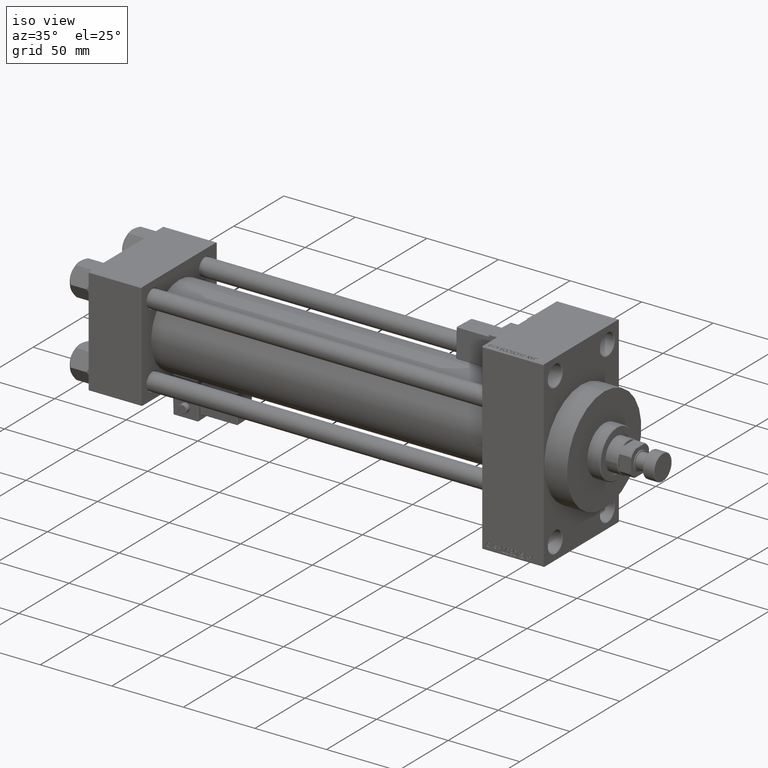
[diagram: clean part render]
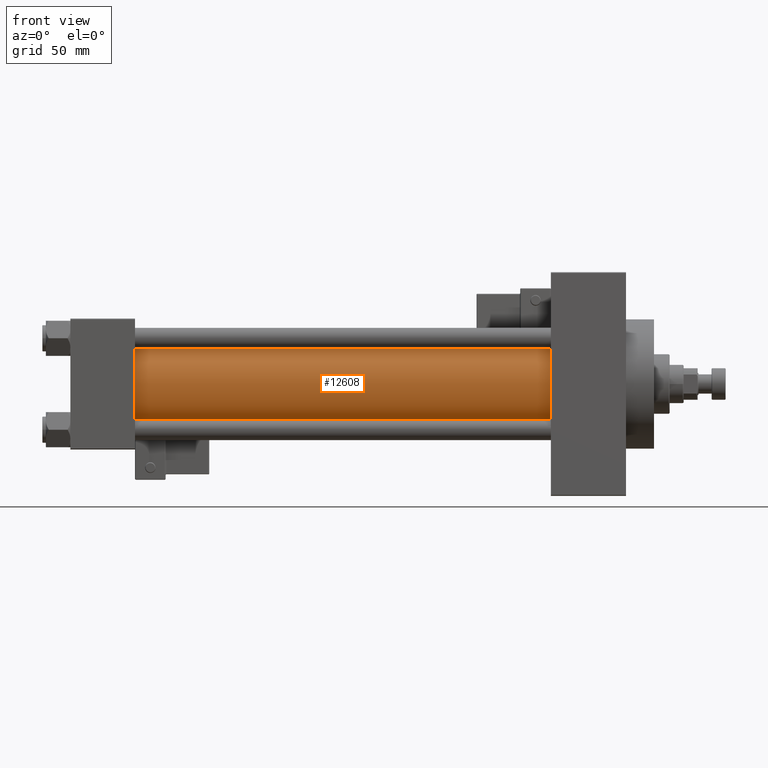
[diagram: tour spotlight — one face highlighted and labeled with its STEP entity id]
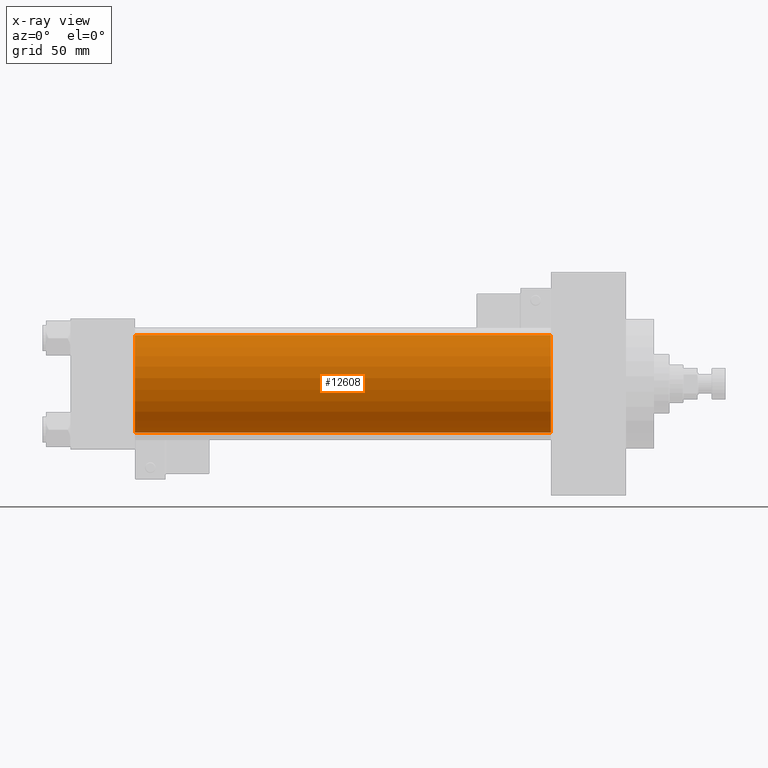
[diagram: x-ray of the same camera — body ghosted, this tour face saturated]
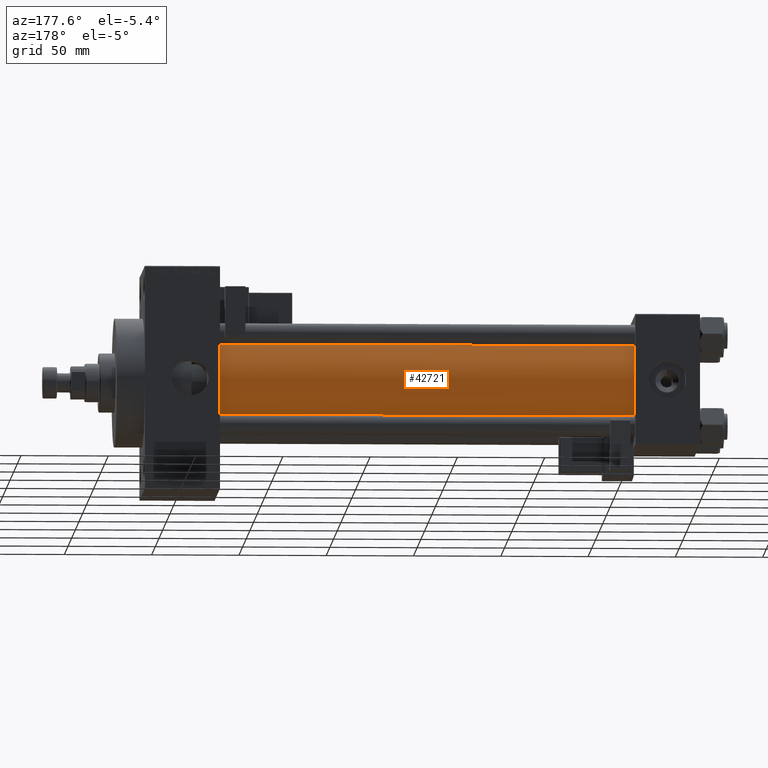
[diagram: tour spotlight — one face highlighted and labeled with its STEP entity id]
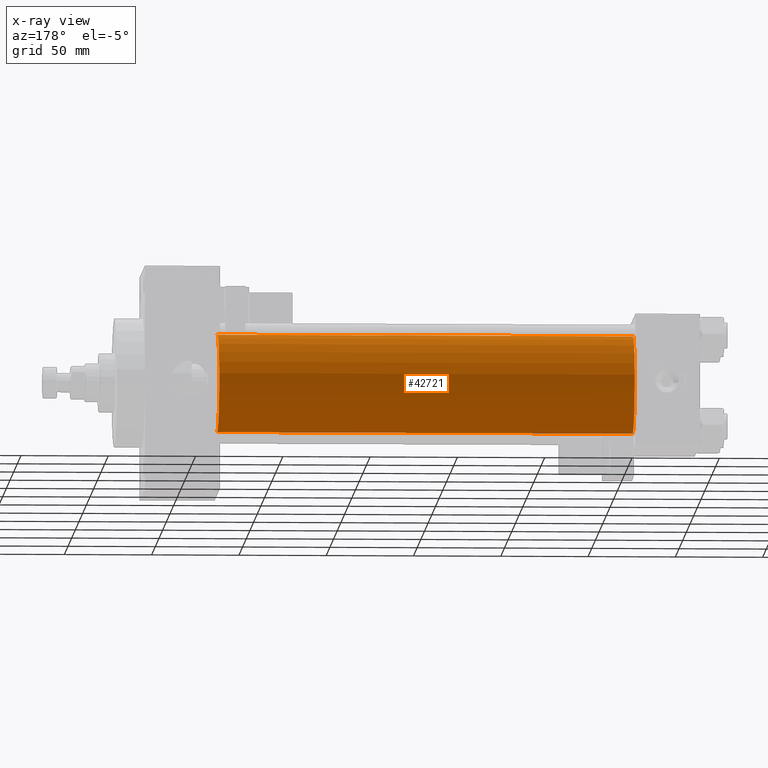
[diagram: x-ray of the same camera — body ghosted, this tour face saturated]
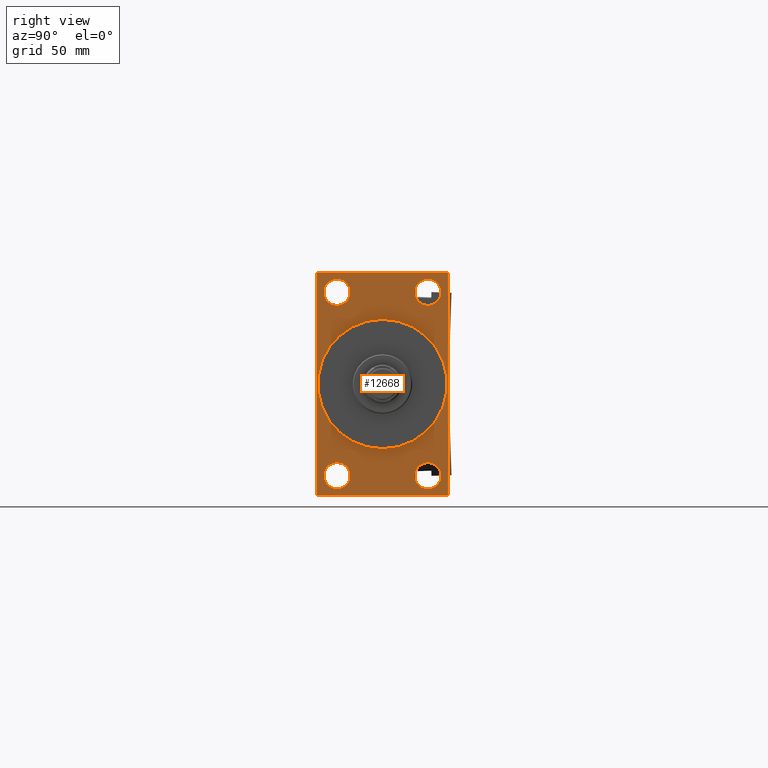
[diagram: tour spotlight — one face highlighted and labeled with its STEP entity id]
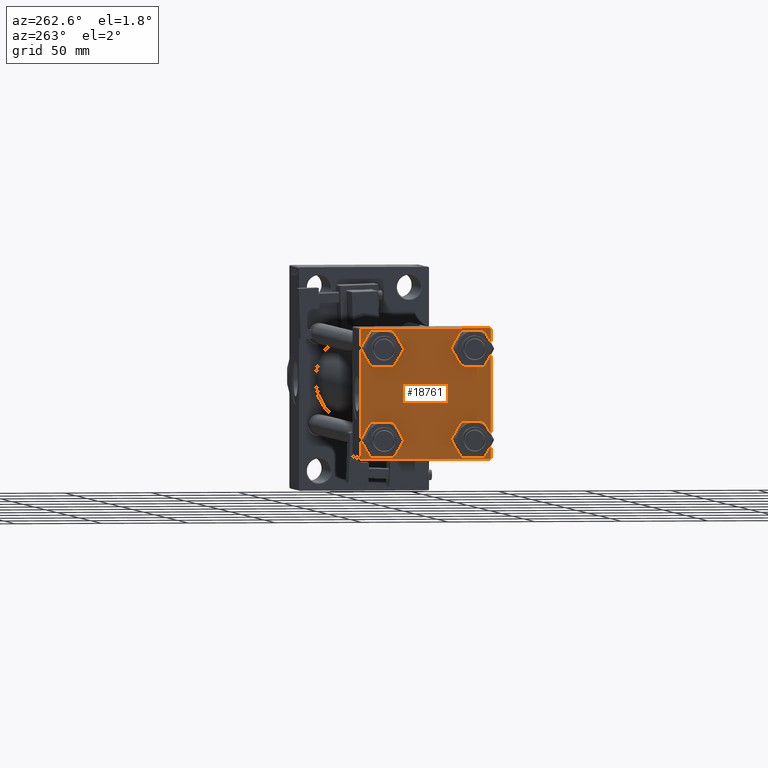
[diagram: tour spotlight — one face highlighted and labeled with its STEP entity id]
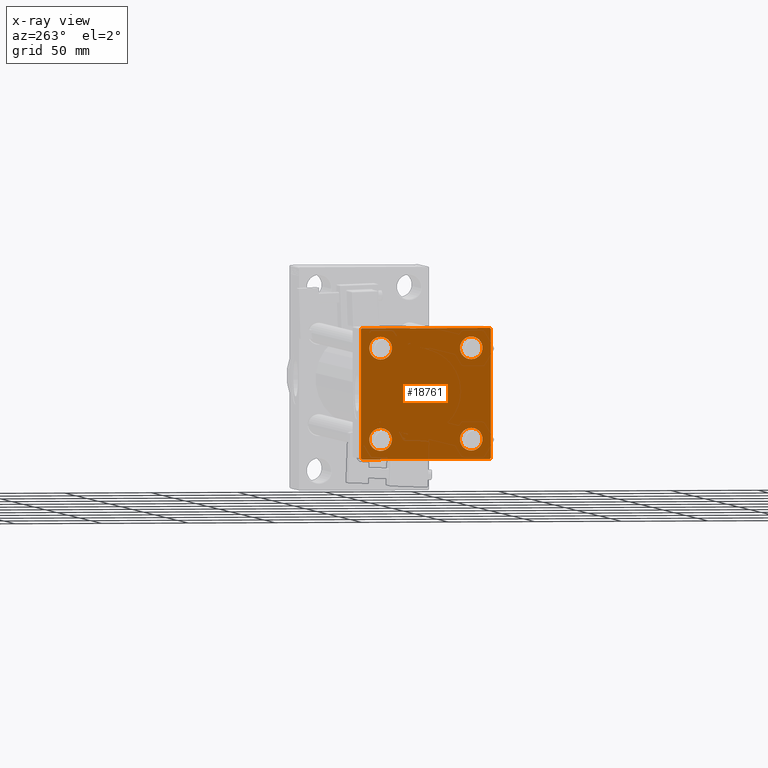
[diagram: x-ray of the same camera — body ghosted, this tour face saturated]
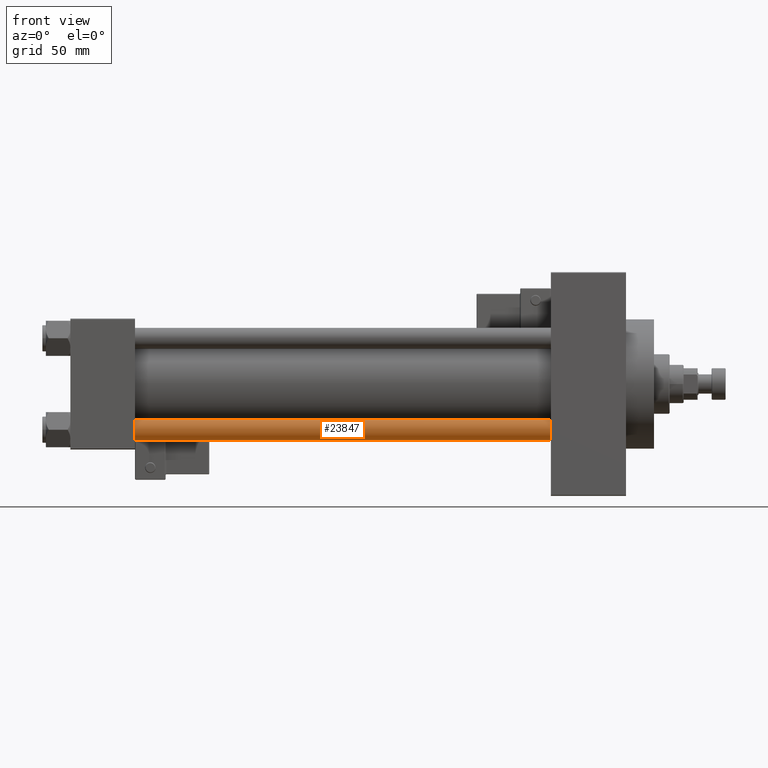
[diagram: tour spotlight — one face highlighted and labeled with its STEP entity id]
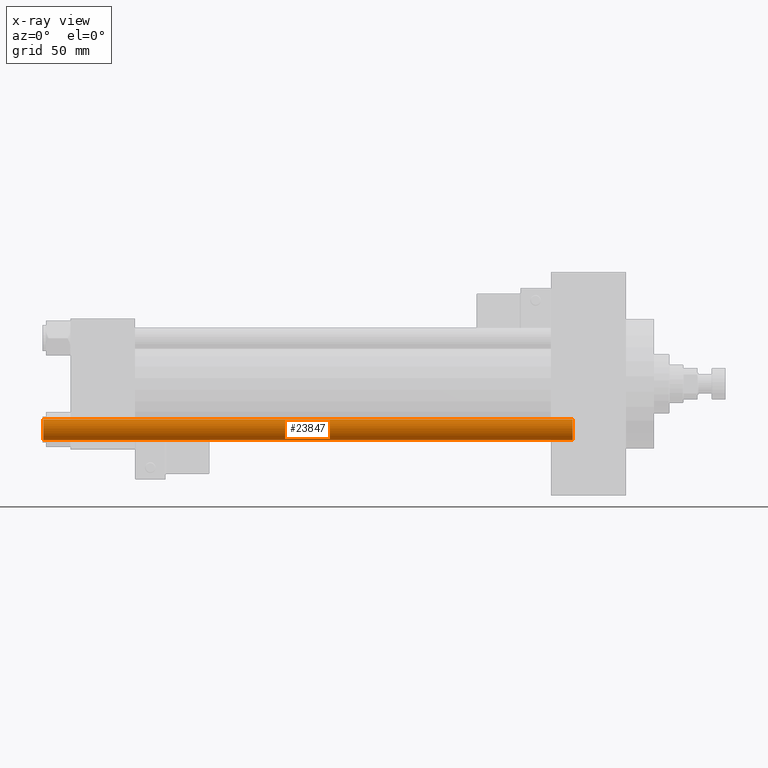
[diagram: x-ray of the same camera — body ghosted, this tour face saturated]
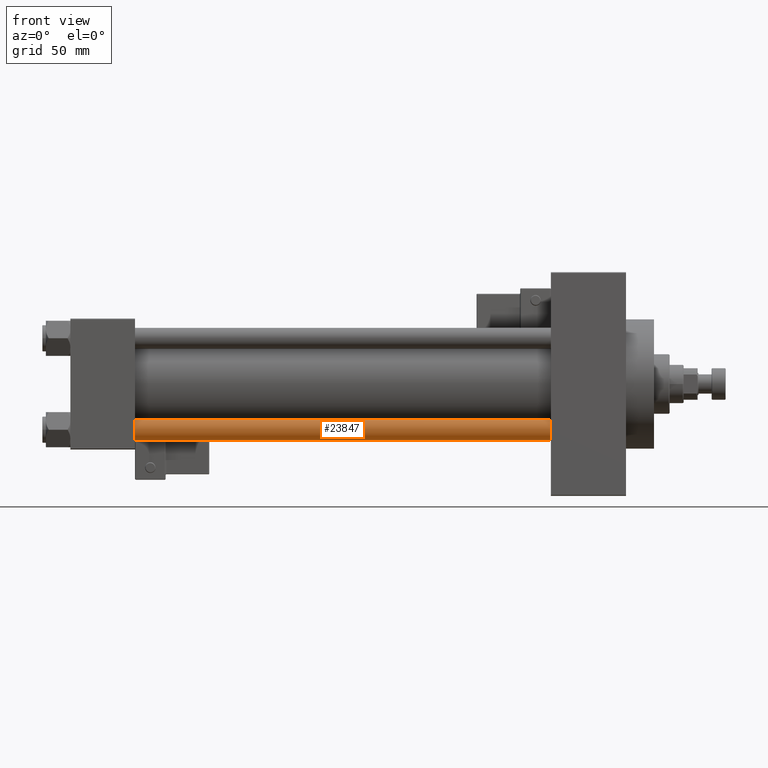
[diagram: tour spotlight — one face highlighted and labeled with its STEP entity id]
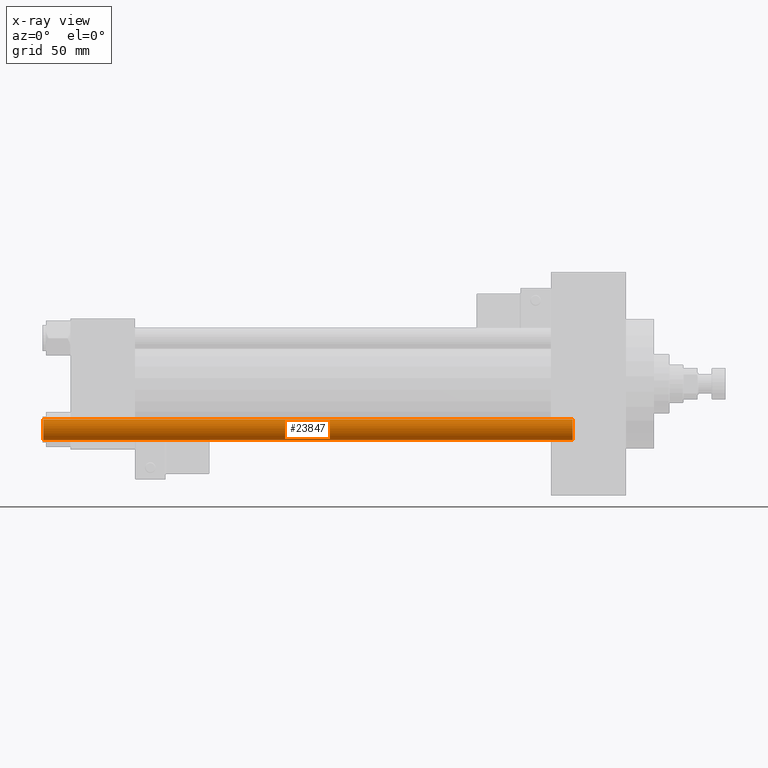
[diagram: x-ray of the same camera — body ghosted, this tour face saturated]
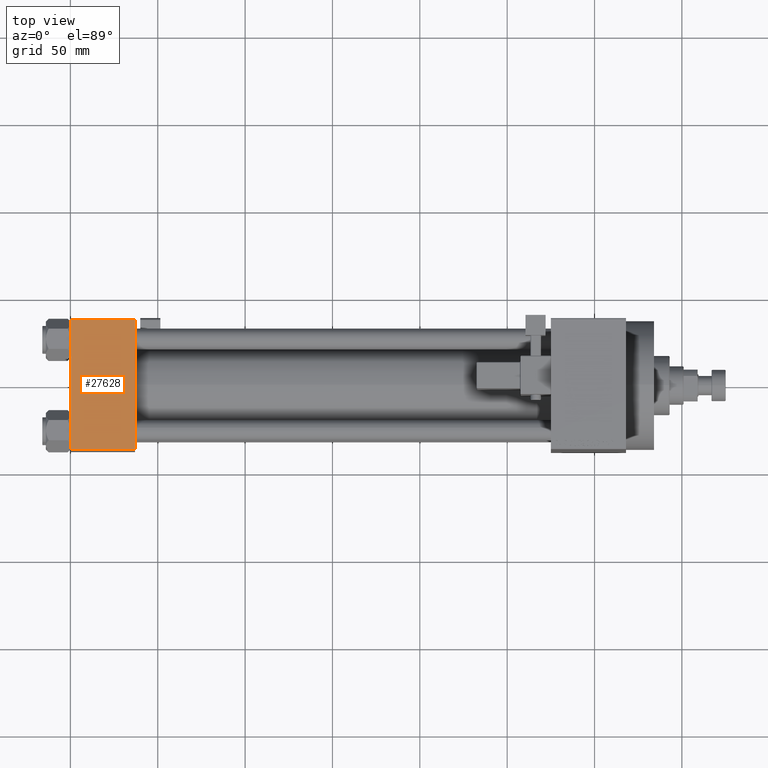
[diagram: tour spotlight — one face highlighted and labeled with its STEP entity id]
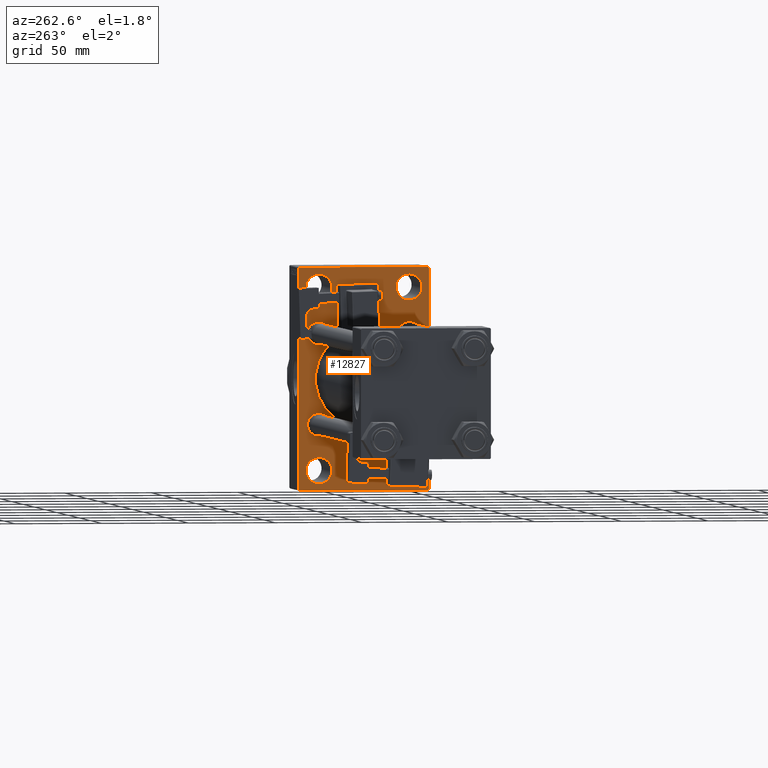
[diagram: tour spotlight — one face highlighted and labeled with its STEP entity id]
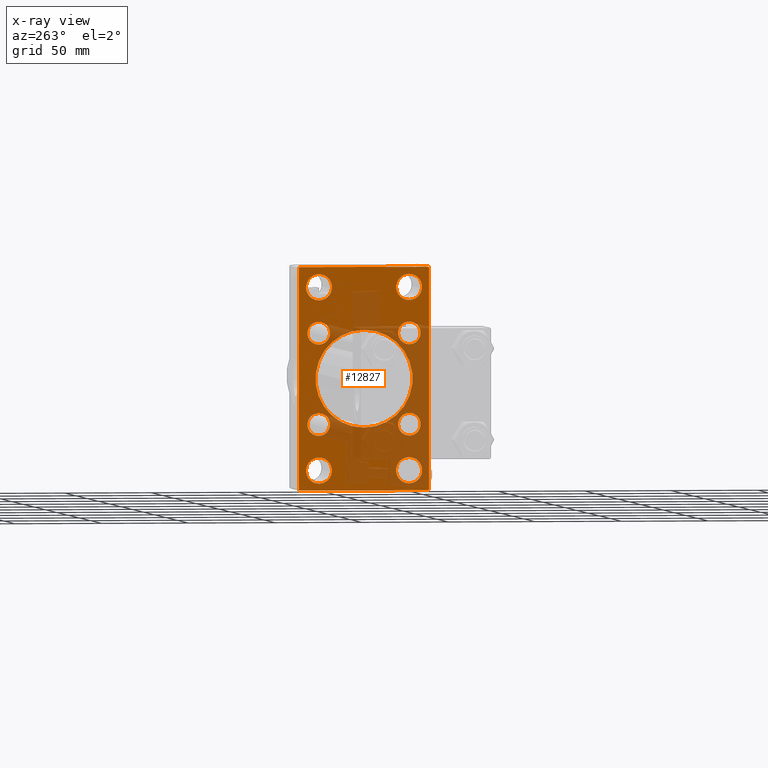
[diagram: x-ray of the same camera — body ghosted, this tour face saturated]
A machine part: a face-by-face anatomy tour. The part has 1272 B-rep faces; the first image is the clean iso view, then the 8 largest visible faces are spotlighted one at a time (largest first), each with its STEP entity span.

Face 1 — front view, entity #12608. An x-ray twin of the same camera follows (body ghosted, this face saturated) — the face is partly hidden behind the body. In plain terms, the highlighted cylindrical surface (partial cylindrical patch) has radius 28 mm, axis along (-1, -0, -0).
Definition (entity closure, byte-faithful):
#542 = AXIS2_PLACEMENT_3D ( 'NONE', #22291, #3082, #18493 ) ;
#1865 = VERTEX_POINT ( 'NONE', #46138 ) ;
#3082 = DIRECTION ( 'NONE',  ( -1.000000000000000000, -0.000000000000000000, -0.000000000000000000 ) ) ;
#6398 = EDGE_CURVE ( 'NONE', #24217, #1865, #41685, .T. ) ;
#6800 = VECTOR ( 'NONE', #49481, 1000.000000000000000 ) ;
#7103 = CARTESIAN_POINT ( 'NONE',  ( 274.9999999999999432, -2.602085213965210642E-15, 28.00000000000000000 ) ) ;
#8464 = CARTESIAN_POINT ( 'NONE',  ( 37.00000000000000711, -2.602085213965210642E-15, 0.000000000000000000 ) ) ;
#9643 = VERTEX_POINT ( 'NONE', #15375 ) ;
#11389 = LINE ( 'NONE', #37915, #6800 ) ;
#12608 = ADVANCED_FACE ( 'NONE', ( #17726 ), #33129, .T. ) ;
#15375 = CARTESIAN_POINT ( 'NONE',  ( 274.9999999999999432, 8.269258236473784371E-16, -28.00000000000000000 ) ) ;
#17272 = ORIENTED_EDGE ( 'NONE', *, *, #44169, .F. ) ;
#17726 = FACE_OUTER_BOUND ( 'NONE', #18631, .T. ) ;
#18493 = DIRECTION ( 'NONE',  ( 0.000000000000000000, 0.000000000000000000, 1.000000000000000000 ) ) ;
#18631 = EDGE_LOOP ( 'NONE', ( #25348, #17272, #43630, #32306 ) ) ;
#18826 = VECTOR ( 'NONE', #23234, 1000.000000000000000 ) ;
#22291 = CARTESIAN_POINT ( 'NONE',  ( 274.9999999999999432, -2.602085213965210642E-15, 0.000000000000000000 ) ) ;
#23234 = DIRECTION ( 'NONE',  ( -1.000000000000000000, -0.000000000000000000, -0.000000000000000000 ) ) ;
#23872 = DIRECTION ( 'NONE',  ( 1.000000000000000000, -0.000000000000000000, 0.000000000000000000 ) ) ;
#24217 = VERTEX_POINT ( 'NONE', #39984 ) ;
#25348 = ORIENTED_EDGE ( 'NONE', *, *, #49610, .F. ) ;
#26082 = AXIS2_PLACEMENT_3D ( 'NONE', #34804, #31781, #47144 ) ;
#27291 = AXIS2_PLACEMENT_3D ( 'NONE', #8464, #23872, #39257 ) ;
#31781 = DIRECTION ( 'NONE',  ( 1.000000000000000000, 0.000000000000000000, 0.000000000000000000 ) ) ;
#32306 = ORIENTED_EDGE ( 'NONE', *, *, #39699, .T. ) ;
#33129 = CYLINDRICAL_SURFACE ( 'NONE', #542, 28.00000000000000000 ) ;
#34804 = CARTESIAN_POINT ( 'NONE',  ( 274.9999999999999432, -2.602085213965210642E-15, 0.000000000000000000 ) ) ;
#37915 = CARTESIAN_POINT ( 'NONE',  ( 274.9999999999999432, 8.269258236473784371E-16, -28.00000000000000000 ) ) ;
#39257 = DIRECTION ( 'NONE',  ( 0.000000000000000000, 0.000000000000000000, 1.000000000000000000 ) ) ;
#39699 = EDGE_CURVE ( 'NONE', #1865, #40814, #49044, .T. ) ;
#39984 = CARTESIAN_POINT ( 'NONE',  ( 274.9999999999999432, -2.602085213965210642E-15, 28.00000000000000000 ) ) ;
#40814 = VERTEX_POINT ( 'NONE', #42730 ) ;
#41685 = LINE ( 'NONE', #7103, #18826 ) ;
#42730 = CARTESIAN_POINT ( 'NONE',  ( 37.00000000000000711, 8.269258236473784371E-16, -28.00000000000000000 ) ) ;
#43630 = ORIENTED_EDGE ( 'NONE', *, *, #6398, .T. ) ;
#44169 = EDGE_CURVE ( 'NONE', #24217, #9643, #46225, .T. ) ;
#46138 = CARTESIAN_POINT ( 'NONE',  ( 37.00000000000000711, -2.602085213965210642E-15, 28.00000000000000000 ) ) ;
#46225 = CIRCLE ( 'NONE', #26082, 28.00000000000000000 ) ;
#47144 = DIRECTION ( 'NONE',  ( 0.000000000000000000, 0.000000000000000000, -1.000000000000000000 ) ) ;
#49044 = CIRCLE ( 'NONE', #27291, 28.00000000000000000 ) ;
#49481 = DIRECTION ( 'NONE',  ( -1.000000000000000000, -0.000000000000000000, -0.000000000000000000 ) ) ;
#49610 = EDGE_CURVE ( 'NONE', #9643, #40814, #11389, .T. ) ;

Face 2 — auxiliary view, entity #42721. An x-ray twin of the same camera follows (body ghosted, this face saturated) — the face is partly hidden behind the body. In plain terms, the highlighted cylindrical surface (partial cylindrical patch) has radius 28 mm, axis along (-1, -0, -0).
Definition (entity closure, byte-faithful):
#1865 = VERTEX_POINT ( 'NONE', #46138 ) ;
#3671 = ORIENTED_EDGE ( 'NONE', *, *, #19499, .F. ) ;
#5906 = ORIENTED_EDGE ( 'NONE', *, *, #24280, .T. ) ;
#5914 = ORIENTED_EDGE ( 'NONE', *, *, #49610, .T. ) ;
#6398 = EDGE_CURVE ( 'NONE', #24217, #1865, #41685, .T. ) ;
#6800 = VECTOR ( 'NONE', #49481, 1000.000000000000000 ) ;
#7103 = CARTESIAN_POINT ( 'NONE',  ( 274.9999999999999432, -2.602085213965210642E-15, 28.00000000000000000 ) ) ;
#7884 = DIRECTION ( 'NONE',  ( 0.000000000000000000, 0.000000000000000000, -1.000000000000000000 ) ) ;
#9643 = VERTEX_POINT ( 'NONE', #15375 ) ;
#11389 = LINE ( 'NONE', #37915, #6800 ) ;
#11411 = DIRECTION ( 'NONE',  ( 1.000000000000000000, -0.000000000000000000, 0.000000000000000000 ) ) ;
#15375 = CARTESIAN_POINT ( 'NONE',  ( 274.9999999999999432, 8.269258236473784371E-16, -28.00000000000000000 ) ) ;
#16384 = CIRCLE ( 'NONE', #36573, 28.00000000000000000 ) ;
#16942 = EDGE_LOOP ( 'NONE', ( #3671, #5914, #5906, #34579 ) ) ;
#17489 = DIRECTION ( 'NONE',  ( -1.000000000000000000, -0.000000000000000000, -0.000000000000000000 ) ) ;
#18010 = DIRECTION ( 'NONE',  ( 0.000000000000000000, 0.000000000000000000, 1.000000000000000000 ) ) ;
#18826 = VECTOR ( 'NONE', #23234, 1000.000000000000000 ) ;
#19499 = EDGE_CURVE ( 'NONE', #9643, #24217, #22667, .T. ) ;
#20377 = AXIS2_PLACEMENT_3D ( 'NONE', #40207, #17489, #36412 ) ;
#22667 = CIRCLE ( 'NONE', #37982, 28.00000000000000000 ) ;
#23234 = DIRECTION ( 'NONE',  ( -1.000000000000000000, -0.000000000000000000, -0.000000000000000000 ) ) ;
#24217 = VERTEX_POINT ( 'NONE', #39984 ) ;
#24280 = EDGE_CURVE ( 'NONE', #40814, #1865, #16384, .T. ) ;
#30141 = DIRECTION ( 'NONE',  ( 1.000000000000000000, 0.000000000000000000, 0.000000000000000000 ) ) ;
#34579 = ORIENTED_EDGE ( 'NONE', *, *, #6398, .F. ) ;
#36180 = CYLINDRICAL_SURFACE ( 'NONE', #20377, 28.00000000000000000 ) ;
#36412 = DIRECTION ( 'NONE',  ( 0.000000000000000000, 0.000000000000000000, 1.000000000000000000 ) ) ;
#36573 = AXIS2_PLACEMENT_3D ( 'NONE', #45977, #11411, #18010 ) ;
#36672 = FACE_OUTER_BOUND ( 'NONE', #16942, .T. ) ;
#37915 = CARTESIAN_POINT ( 'NONE',  ( 274.9999999999999432, 8.269258236473784371E-16, -28.00000000000000000 ) ) ;
#37982 = AXIS2_PLACEMENT_3D ( 'NONE', #49264, #30141, #7884 ) ;
#39984 = CARTESIAN_POINT ( 'NONE',  ( 274.9999999999999432, -2.602085213965210642E-15, 28.00000000000000000 ) ) ;
#40207 = CARTESIAN_POINT ( 'NONE',  ( 274.9999999999999432, -2.602085213965210642E-15, 0.000000000000000000 ) ) ;
#40814 = VERTEX_POINT ( 'NONE', #42730 ) ;
#41685 = LINE ( 'NONE', #7103, #18826 ) ;
#42721 = ADVANCED_FACE ( 'NONE', ( #36672 ), #36180, .T. ) ;
#42730 = CARTESIAN_POINT ( 'NONE',  ( 37.00000000000000711, 8.269258236473784371E-16, -28.00000000000000000 ) ) ;
#45977 = CARTESIAN_POINT ( 'NONE',  ( 37.00000000000000711, -2.602085213965210642E-15, 0.000000000000000000 ) ) ;
#46138 = CARTESIAN_POINT ( 'NONE',  ( 37.00000000000000711, -2.602085213965210642E-15, 28.00000000000000000 ) ) ;
#49264 = CARTESIAN_POINT ( 'NONE',  ( 274.9999999999999432, -2.602085213965210642E-15, 0.000000000000000000 ) ) ;
#49481 = DIRECTION ( 'NONE',  ( -1.000000000000000000, -0.000000000000000000, -0.000000000000000000 ) ) ;
#49610 = EDGE_CURVE ( 'NONE', #9643, #40814, #11389, .T. ) ;

Face 3 — right view, entity #12668. In plain terms, the highlighted planar face has unit normal (-1, 0, 0).
Definition (entity closure, byte-faithful):
#278 = DIRECTION ( 'NONE',  ( 0.000000000000000000, 0.000000000000000000, 1.000000000000000000 ) ) ;
#916 = CARTESIAN_POINT ( 'NONE',  ( 317.9999999999999432, 26.00000000000000000, 60.00000000000000000 ) ) ;
#1484 = ORIENTED_EDGE ( 'NONE', *, *, #31979, .F. ) ;
#2081 = DIRECTION ( 'NONE',  ( 0.000000000000000000, 0.000000000000000000, 1.000000000000000000 ) ) ;
#3228 = VERTEX_POINT ( 'NONE', #45549 ) ;
#5218 = VECTOR ( 'NONE', #6699, 1000.000000000000000 ) ;
#5252 = CARTESIAN_POINT ( 'NONE',  ( 317.9999999999999432, 26.00000000000000000, 52.49999999999999289 ) ) ;
#5446 = AXIS2_PLACEMENT_3D ( 'NONE', #7930, #42742, #34681 ) ;
#6038 = AXIS2_PLACEMENT_3D ( 'NONE', #36740, #29690, #40513 ) ;
#6197 = LINE ( 'NONE', #29424, #5218 ) ;
#6505 = ORIENTED_EDGE ( 'NONE', *, *, #47329, .T. ) ;
#6538 = EDGE_CURVE ( 'NONE', #42731, #13857, #38168, .T. ) ;
#6545 = ORIENTED_EDGE ( 'NONE', *, *, #15901, .T. ) ;
#6699 = DIRECTION ( 'NONE',  ( -0.000000000000000000, -0.7071067811865524577, -0.7071067811865426878 ) ) ;
#7348 = DIRECTION ( 'NONE',  ( -1.000000000000000000, 0.000000000000000000, -0.000000000000000000 ) ) ;
#7805 = ORIENTED_EDGE ( 'NONE', *, *, #40971, .T. ) ;
#7930 = CARTESIAN_POINT ( 'NONE',  ( 317.9999999999999432, 0.000000000000000000, 0.000000000000000000 ) ) ;
#7964 = CARTESIAN_POINT ( 'NONE',  ( 317.9999999999999432, 37.49999999999999289, -64.00000000000000000 ) ) ;
#7977 = LINE ( 'NONE', #46332, #10766 ) ;
#8087 = FACE_BOUND ( 'NONE', #10664, .T. ) ;
#8225 = CIRCLE ( 'NONE', #21146, 7.500000000000007105 ) ;
#8320 = VERTEX_POINT ( 'NONE', #39149 ) ;
#8809 = VERTEX_POINT ( 'NONE', #24709 ) ;
#9345 = EDGE_CURVE ( 'NONE', #16196, #21749, #43136, .T. ) ;
#10603 = CARTESIAN_POINT ( 'NONE',  ( 317.9999999999999432, 37.50000000000000000, 63.99999999999998579 ) ) ;
#10614 = VECTOR ( 'NONE', #28207, 1000.000000000000000 ) ;
#10664 = EDGE_LOOP ( 'NONE', ( #38329, #6505 ) ) ;
#10713 = CIRCLE ( 'NONE', #19565, 7.500000000000007105 ) ;
#10766 = VECTOR ( 'NONE', #49847, 1000.000000000000000 ) ;
#11136 = DIRECTION ( 'NONE',  ( 0.000000000000000000, 0.000000000000000000, 1.000000000000000000 ) ) ;
#11480 = DIRECTION ( 'NONE',  ( 0.000000000000000000, 0.000000000000000000, 1.000000000000000000 ) ) ;
#11576 = ORIENTED_EDGE ( 'NONE', *, *, #28495, .T. ) ;
#11643 = LINE ( 'NONE', #27277, #47774 ) ;
#12191 = ORIENTED_EDGE ( 'NONE', *, *, #6538, .T. ) ;
#12540 = AXIS2_PLACEMENT_3D ( 'NONE', #5252, #20665, #36049 ) ;
#12668 = ADVANCED_FACE ( 'NONE', ( #42670, #42426, #8087, #31086, #23488, #49475 ), #26777, .F. ) ;
#13581 = ORIENTED_EDGE ( 'NONE', *, *, #33353, .F. ) ;
#13658 = CARTESIAN_POINT ( 'NONE',  ( 317.9999999999999432, 26.00000000000000000, -52.49999999999999289 ) ) ;
#13685 = EDGE_LOOP ( 'NONE', ( #22561, #37453 ) ) ;
#13845 = DIRECTION ( 'NONE',  ( -1.000000000000000000, 0.000000000000000000, -0.000000000000000000 ) ) ;
#13857 = VERTEX_POINT ( 'NONE', #30057 ) ;
#13938 = CARTESIAN_POINT ( 'NONE',  ( 317.9999999999999432, -25.99999999999999645, -60.00000000000000000 ) ) ;
#14478 = CARTESIAN_POINT ( 'NONE',  ( 317.9999999999999432, 4.531193156845206793E-15, -37.00000000000000000 ) ) ;
#15707 = ORIENTED_EDGE ( 'NONE', *, *, #9345, .T. ) ;
#15901 = EDGE_CURVE ( 'NONE', #32816, #8809, #47859, .T. ) ;
#15924 = CARTESIAN_POINT ( 'NONE',  ( 317.9999999999999432, 0.000000000000000000, 0.000000000000000000 ) ) ;
#16013 = CARTESIAN_POINT ( 'NONE',  ( 317.9999999999999432, 26.00000000000000000, 44.99999999999998579 ) ) ;
#16020 = AXIS2_PLACEMENT_3D ( 'NONE', #37876, #30324, #22718 ) ;
#16196 = VERTEX_POINT ( 'NONE', #28586 ) ;
#16398 = AXIS2_PLACEMENT_3D ( 'NONE', #30343, #45705, #11136 ) ;
#16690 = ORIENTED_EDGE ( 'NONE', *, *, #47103, .T. ) ;
#16931 = CARTESIAN_POINT ( 'NONE',  ( 317.9999999999999432, -25.99999999999999645, 44.99999999999999289 ) ) ;
#17438 = VECTOR ( 'NONE', #46687, 1000.000000000000000 ) ;
#17636 = CARTESIAN_POINT ( 'NONE',  ( 317.9999999999999432, -25.99999999999999645, -52.49999999999999289 ) ) ;
#17913 = DIRECTION ( 'NONE',  ( 0.000000000000000000, -1.000000000000000000, -1.850371707708594563E-16 ) ) ;
#18169 = CIRCLE ( 'NONE', #12540, 7.500000000000007105 ) ;
#19525 = EDGE_LOOP ( 'NONE', ( #6545, #35971, #1484, #16690, #13581, #35938, #46154, #47389 ) ) ;
#19565 = AXIS2_PLACEMENT_3D ( 'NONE', #13658, #44188, #21497 ) ;
#19978 = VERTEX_POINT ( 'NONE', #45839 ) ;
#20093 = EDGE_LOOP ( 'NONE', ( #7805, #15707 ) ) ;
#20258 = VERTEX_POINT ( 'NONE', #25235 ) ;
#20425 = EDGE_CURVE ( 'NONE', #20258, #39724, #34316, .T. ) ;
#20665 = DIRECTION ( 'NONE',  ( -1.000000000000000000, 0.000000000000000000, -0.000000000000000000 ) ) ;
#20775 = EDGE_LOOP ( 'NONE', ( #34957, #11576 ) ) ;
#21146 = AXIS2_PLACEMENT_3D ( 'NONE', #25297, #36667, #2081 ) ;
#21202 = DIRECTION ( 'NONE',  ( 0.000000000000000000, 0.000000000000000000, 1.000000000000000000 ) ) ;
#21435 = CARTESIAN_POINT ( 'NONE',  ( 317.9999999999999432, 37.49999999999999289, -63.50000000000001421 ) ) ;
#21497 = DIRECTION ( 'NONE',  ( 0.000000000000000000, 0.000000000000000000, 1.000000000000000000 ) ) ;
#21749 = VERTEX_POINT ( 'NONE', #16931 ) ;
#21912 = AXIS2_PLACEMENT_3D ( 'NONE', #36338, #41124, #21202 ) ;
#22117 = AXIS2_PLACEMENT_3D ( 'NONE', #17636, #13845, #11480 ) ;
#22539 = CARTESIAN_POINT ( 'NONE',  ( 317.9999999999999432, -25.99999999999999645, 52.50000000000000000 ) ) ;
#22561 = ORIENTED_EDGE ( 'NONE', *, *, #39150, .F. ) ;
#22672 = EDGE_CURVE ( 'NONE', #44964, #38006, #10713, .T. ) ;
#22718 = DIRECTION ( 'NONE',  ( 0.000000000000000000, 0.000000000000000000, -1.000000000000000000 ) ) ;
#23488 = FACE_BOUND ( 'NONE', #13685, .T. ) ;
#24102 = VERTEX_POINT ( 'NONE', #16013 ) ;
#24246 = CARTESIAN_POINT ( 'NONE',  ( 317.9999999999999432, 37.50000000000000000, 63.99999999999998579 ) ) ;
#24310 = VERTEX_POINT ( 'NONE', #14478 ) ;
#24312 = CIRCLE ( 'NONE', #21912, 7.500000000000007105 ) ;
#24709 = CARTESIAN_POINT ( 'NONE',  ( 317.9999999999999432, -37.49999999999999289, -63.49999999999997158 ) ) ;
#25009 = CARTESIAN_POINT ( 'NONE',  ( 317.9999999999999432, 26.00000000000000000, -44.99999999999998579 ) ) ;
#25048 = EDGE_CURVE ( 'NONE', #13857, #42731, #34984, .T. ) ;
#25235 = CARTESIAN_POINT ( 'NONE',  ( 317.9999999999999432, 36.99999999999994316, 63.99999999999998579 ) ) ;
#25297 = CARTESIAN_POINT ( 'NONE',  ( 317.9999999999999432, -25.99999999999999645, 52.50000000000000000 ) ) ;
#26777 = PLANE ( 'NONE',  #27975 ) ;
#27277 = CARTESIAN_POINT ( 'NONE',  ( 317.9999999999999432, -36.99999999999993605, -64.00000000000001421 ) ) ;
#27517 = DIRECTION ( 'NONE',  ( -0.000000000000000000, 0.000000000000000000, 1.000000000000000000 ) ) ;
#27975 = AXIS2_PLACEMENT_3D ( 'NONE', #15924, #7348, #27517 ) ;
#28207 = DIRECTION ( 'NONE',  ( 0.000000000000000000, 0.000000000000000000, -1.000000000000000000 ) ) ;
#28495 = EDGE_CURVE ( 'NONE', #35473, #24102, #18169, .T. ) ;
#28586 = CARTESIAN_POINT ( 'NONE',  ( 317.9999999999999432, -25.99999999999999645, 60.00000000000000711 ) ) ;
#29424 = CARTESIAN_POINT ( 'NONE',  ( 317.9999999999999432, -37.49999999999999289, 63.49999999999991473 ) ) ;
#29690 = DIRECTION ( 'NONE',  ( -1.000000000000000000, 0.000000000000000000, -0.000000000000000000 ) ) ;
#30057 = CARTESIAN_POINT ( 'NONE',  ( 317.9999999999999432, -25.99999999999999645, -44.99999999999998579 ) ) ;
#30248 = CIRCLE ( 'NONE', #6038, 7.500000000000007105 ) ;
#30324 = DIRECTION ( 'NONE',  ( 1.000000000000000000, 0.000000000000000000, 0.000000000000000000 ) ) ;
#30343 = CARTESIAN_POINT ( 'NONE',  ( 317.9999999999999432, -25.99999999999999645, -52.49999999999999289 ) ) ;
#30361 = VERTEX_POINT ( 'NONE', #21435 ) ;
#31086 = FACE_BOUND ( 'NONE', #20775, .T. ) ;
#31979 = EDGE_CURVE ( 'NONE', #8320, #3228, #41809, .T. ) ;
#32486 = VECTOR ( 'NONE', #41452, 1000.000000000000114 ) ;
#32816 = VERTEX_POINT ( 'NONE', #38077 ) ;
#32998 = CARTESIAN_POINT ( 'NONE',  ( 317.9999999999999432, -37.49999999999999289, 63.99999999999997158 ) ) ;
#33353 = EDGE_CURVE ( 'NONE', #19978, #30361, #43176, .T. ) ;
#34124 = CARTESIAN_POINT ( 'NONE',  ( 317.9999999999999432, 36.99999999999994316, 63.99999999999998579 ) ) ;
#34242 = DIRECTION ( 'NONE',  ( 0.000000000000000000, -1.000000000000000000, -1.850371707708594563E-16 ) ) ;
#34316 = LINE ( 'NONE', #10603, #45289 ) ;
#34477 = CIRCLE ( 'NONE', #5446, 37.00000000000000000 ) ;
#34681 = DIRECTION ( 'NONE',  ( 0.000000000000000000, 0.000000000000000000, -1.000000000000000000 ) ) ;
#34957 = ORIENTED_EDGE ( 'NONE', *, *, #40296, .T. ) ;
#34984 = CIRCLE ( 'NONE', #22117, 7.500000000000007105 ) ;
#35473 = VERTEX_POINT ( 'NONE', #916 ) ;
#35930 = VECTOR ( 'NONE', #34242, 1000.000000000000000 ) ;
#35938 = ORIENTED_EDGE ( 'NONE', *, *, #42882, .T. ) ;
#35971 = ORIENTED_EDGE ( 'NONE', *, *, #42963, .T. ) ;
#36049 = DIRECTION ( 'NONE',  ( 0.000000000000000000, 0.000000000000000000, 1.000000000000000000 ) ) ;
#36338 = CARTESIAN_POINT ( 'NONE',  ( 317.9999999999999432, 26.00000000000000000, 52.49999999999999289 ) ) ;
#36585 = EDGE_CURVE ( 'NONE', #24310, #41757, #34477, .T. ) ;
#36667 = DIRECTION ( 'NONE',  ( -1.000000000000000000, 0.000000000000000000, -0.000000000000000000 ) ) ;
#36740 = CARTESIAN_POINT ( 'NONE',  ( 317.9999999999999432, 26.00000000000000000, -52.49999999999999289 ) ) ;
#37212 = CARTESIAN_POINT ( 'NONE',  ( 317.9999999999999432, -36.99999999999992895, 63.99999999999997158 ) ) ;
#37453 = ORIENTED_EDGE ( 'NONE', *, *, #36585, .F. ) ;
#37876 = CARTESIAN_POINT ( 'NONE',  ( 317.9999999999999432, 0.000000000000000000, 0.000000000000000000 ) ) ;
#38006 = VERTEX_POINT ( 'NONE', #25009 ) ;
#38077 = CARTESIAN_POINT ( 'NONE',  ( 317.9999999999999432, -37.49999999999999289, 63.49999999999991473 ) ) ;
#38168 = CIRCLE ( 'NONE', #16398, 7.500000000000007105 ) ;
#38274 = AXIS2_PLACEMENT_3D ( 'NONE', #22539, #41721, #278 ) ;
#38329 = ORIENTED_EDGE ( 'NONE', *, *, #22672, .T. ) ;
#39149 = CARTESIAN_POINT ( 'NONE',  ( 317.9999999999999432, 36.99999999999999289, -64.00000000000000000 ) ) ;
#39150 = EDGE_CURVE ( 'NONE', #41757, #24310, #41036, .T. ) ;
#39724 = VERTEX_POINT ( 'NONE', #37212 ) ;
#40296 = EDGE_CURVE ( 'NONE', #24102, #35473, #24312, .T. ) ;
#40513 = DIRECTION ( 'NONE',  ( 0.000000000000000000, 0.000000000000000000, 1.000000000000000000 ) ) ;
#40971 = EDGE_CURVE ( 'NONE', #21749, #16196, #8225, .T. ) ;
#41036 = CIRCLE ( 'NONE', #16020, 37.00000000000000000 ) ;
#41124 = DIRECTION ( 'NONE',  ( -1.000000000000000000, 0.000000000000000000, -0.000000000000000000 ) ) ;
#41135 = ORIENTED_EDGE ( 'NONE', *, *, #25048, .T. ) ;
#41196 = LINE ( 'NONE', #34124, #32486 ) ;
#41452 = DIRECTION ( 'NONE',  ( 0.000000000000000000, -0.7071067811865474617, 0.7071067811865474617 ) ) ;
#41721 = DIRECTION ( 'NONE',  ( -1.000000000000000000, 0.000000000000000000, -0.000000000000000000 ) ) ;
#41757 = VERTEX_POINT ( 'NONE', #44296 ) ;
#41809 = LINE ( 'NONE', #7964, #35930 ) ;
#42426 = FACE_BOUND ( 'NONE', #48356, .T. ) ;
#42670 = FACE_BOUND ( 'NONE', #20093, .T. ) ;
#42731 = VERTEX_POINT ( 'NONE', #13938 ) ;
#42742 = DIRECTION ( 'NONE',  ( 1.000000000000000000, 0.000000000000000000, 0.000000000000000000 ) ) ;
#42882 = EDGE_CURVE ( 'NONE', #19978, #20258, #41196, .T. ) ;
#42963 = EDGE_CURVE ( 'NONE', #8809, #3228, #11643, .T. ) ;
#43136 = CIRCLE ( 'NONE', #38274, 7.500000000000007105 ) ;
#43176 = LINE ( 'NONE', #24246, #17438 ) ;
#44188 = DIRECTION ( 'NONE',  ( -1.000000000000000000, 0.000000000000000000, -0.000000000000000000 ) ) ;
#44296 = CARTESIAN_POINT ( 'NONE',  ( 317.9999999999999432, 0.000000000000000000, 37.00000000000000000 ) ) ;
#44964 = VERTEX_POINT ( 'NONE', #46119 ) ;
#45289 = VECTOR ( 'NONE', #17913, 1000.000000000000000 ) ;
#45549 = CARTESIAN_POINT ( 'NONE',  ( 317.9999999999999432, -36.99999999999993605, -64.00000000000001421 ) ) ;
#45705 = DIRECTION ( 'NONE',  ( -1.000000000000000000, 0.000000000000000000, -0.000000000000000000 ) ) ;
#45839 = CARTESIAN_POINT ( 'NONE',  ( 317.9999999999999432, 37.50000000000000000, 63.49999999999992895 ) ) ;
#46119 = CARTESIAN_POINT ( 'NONE',  ( 317.9999999999999432, 26.00000000000000000, -60.00000000000000000 ) ) ;
#46154 = ORIENTED_EDGE ( 'NONE', *, *, #20425, .T. ) ;
#46332 = CARTESIAN_POINT ( 'NONE',  ( 317.9999999999999432, 37.49999999999999289, -63.50000000000001421 ) ) ;
#46686 = DIRECTION ( 'NONE',  ( 0.000000000000000000, 0.7071067811865574537, -0.7071067811865376918 ) ) ;
#46687 = DIRECTION ( 'NONE',  ( 0.000000000000000000, -5.421010862427522170E-17, -1.000000000000000000 ) ) ;
#47103 = EDGE_CURVE ( 'NONE', #8320, #30361, #7977, .T. ) ;
#47329 = EDGE_CURVE ( 'NONE', #38006, #44964, #30248, .T. ) ;
#47389 = ORIENTED_EDGE ( 'NONE', *, *, #49207, .T. ) ;
#47774 = VECTOR ( 'NONE', #46686, 999.9999999999998863 ) ;
#47859 = LINE ( 'NONE', #32998, #10614 ) ;
#48356 = EDGE_LOOP ( 'NONE', ( #12191, #41135 ) ) ;
#49207 = EDGE_CURVE ( 'NONE', #39724, #32816, #6197, .T. ) ;
#49475 = FACE_OUTER_BOUND ( 'NONE', #19525, .T. ) ;
#49847 = DIRECTION ( 'NONE',  ( -0.000000000000000000, 0.7071067811865573427, 0.7071067811865378028 ) ) ;

Face 4 — auxiliary view, entity #18761. An x-ray twin of the same camera follows (body ghosted, this face saturated) — the face is partly hidden behind the body. In plain terms, the highlighted planar face has unit normal (-1, 0, 0).
Definition (entity closure, byte-faithful):
#49 = CIRCLE ( 'NONE', #34832, 6.500000000000015987 ) ;
#67 = CARTESIAN_POINT ( 'NONE',  ( 0.000000000000000000, 37.49999999999999289, 37.50000000000000000 ) ) ;
#168 = VERTEX_POINT ( 'NONE', #33763 ) ;
#477 = CIRCLE ( 'NONE', #26302, 6.500000000000023093 ) ;
#1156 = AXIS2_PLACEMENT_3D ( 'NONE', #4116, #15986, #8152 ) ;
#1288 = DIRECTION ( 'NONE',  ( 0.000000000000000000, 0.000000000000000000, 1.000000000000000000 ) ) ;
#1336 = LINE ( 'NONE', #9655, #28486 ) ;
#2503 = CARTESIAN_POINT ( 'NONE',  ( 0.000000000000000000, 26.14999999999999858, 19.64999999999998437 ) ) ;
#2619 = EDGE_CURVE ( 'NONE', #46594, #168, #1336, .T. ) ;
#2669 = VERTEX_POINT ( 'NONE', #28345 ) ;
#3782 = VECTOR ( 'NONE', #45354, 1000.000000000000000 ) ;
#4116 = CARTESIAN_POINT ( 'NONE',  ( 0.000000000000000000, -26.14999999999999147, -26.15000000000000924 ) ) ;
#4583 = DIRECTION ( 'NONE',  ( 0.000000000000000000, 0.000000000000000000, -1.000000000000000000 ) ) ;
#4809 = CARTESIAN_POINT ( 'NONE',  ( 0.000000000000000000, 36.99999999999999289, 37.50000000000000000 ) ) ;
#5974 = CIRCLE ( 'NONE', #30174, 6.500000000000015987 ) ;
#6087 = DIRECTION ( 'NONE',  ( -1.000000000000000000, 0.000000000000000000, -0.000000000000000000 ) ) ;
#6812 = VERTEX_POINT ( 'NONE', #25220 ) ;
#6971 = EDGE_LOOP ( 'NONE', ( #47442, #41554 ) ) ;
#7166 = LINE ( 'NONE', #26582, #43152 ) ;
#7203 = EDGE_CURVE ( 'NONE', #10522, #2669, #24524, .T. ) ;
#7342 = CARTESIAN_POINT ( 'NONE',  ( 0.000000000000000000, 37.49999999999999289, -37.50000000000000000 ) ) ;
#7619 = EDGE_CURVE ( 'NONE', #41439, #34077, #39028, .T. ) ;
#8152 = DIRECTION ( 'NONE',  ( 0.000000000000000000, 0.000000000000000000, 1.000000000000000000 ) ) ;
#8284 = DIRECTION ( 'NONE',  ( 0.000000000000000000, 0.000000000000000000, 1.000000000000000000 ) ) ;
#8880 = ORIENTED_EDGE ( 'NONE', *, *, #43137, .T. ) ;
#9118 = PLANE ( 'NONE',  #26755 ) ;
#9371 = VECTOR ( 'NONE', #13123, 1000.000000000000114 ) ;
#9589 = LINE ( 'NONE', #18174, #9371 ) ;
#9655 = CARTESIAN_POINT ( 'NONE',  ( 0.000000000000000000, 37.24999999999999289, 37.24999999999999289 ) ) ;
#9804 = VERTEX_POINT ( 'NONE', #12335 ) ;
#9837 = CARTESIAN_POINT ( 'NONE',  ( 0.000000000000000000, 36.99999999999997868, -37.50000000000000000 ) ) ;
#10096 = CARTESIAN_POINT ( 'NONE',  ( 0.000000000000000000, 26.14999999999999858, 26.15000000000000213 ) ) ;
#10522 = VERTEX_POINT ( 'NONE', #12973 ) ;
#10922 = VERTEX_POINT ( 'NONE', #15100 ) ;
#11433 = DIRECTION ( 'NONE',  ( 1.000000000000000000, -0.000000000000000000, 0.000000000000000000 ) ) ;
#11656 = CARTESIAN_POINT ( 'NONE',  ( 0.000000000000000000, 37.49999999999999289, 37.50000000000000000 ) ) ;
#12246 = ORIENTED_EDGE ( 'NONE', *, *, #46469, .T. ) ;
#12326 = CARTESIAN_POINT ( 'NONE',  ( 0.000000000000000000, 26.14999999999999858, -26.15000000000000213 ) ) ;
#12335 = CARTESIAN_POINT ( 'NONE',  ( 0.000000000000000000, -37.00000000000000711, 37.49999999999999289 ) ) ;
#12914 = VERTEX_POINT ( 'NONE', #9837 ) ;
#12973 = CARTESIAN_POINT ( 'NONE',  ( 0.000000000000000000, 26.14999999999999858, -32.65000000000001990 ) ) ;
#13123 = DIRECTION ( 'NONE',  ( -0.000000000000000000, 0.7071067811865474617, 0.7071067811865474617 ) ) ;
#13378 = EDGE_CURVE ( 'NONE', #25994, #44462, #46271, .T. ) ;
#13897 = DIRECTION ( 'NONE',  ( -0.000000000000000000, 0.000000000000000000, 1.000000000000000000 ) ) ;
#14750 = LINE ( 'NONE', #67, #44636 ) ;
#15100 = CARTESIAN_POINT ( 'NONE',  ( 0.000000000000000000, -37.50000000000000711, 36.99999999999999289 ) ) ;
#15559 = ORIENTED_EDGE ( 'NONE', *, *, #30011, .T. ) ;
#15986 = DIRECTION ( 'NONE',  ( 1.000000000000000000, -0.000000000000000000, 0.000000000000000000 ) ) ;
#16371 = CIRCLE ( 'NONE', #42952, 6.500000000000023093 ) ;
#16442 = FACE_BOUND ( 'NONE', #35361, .T. ) ;
#16465 = ORIENTED_EDGE ( 'NONE', *, *, #2619, .T. ) ;
#16891 = CARTESIAN_POINT ( 'NONE',  ( 0.000000000000000000, -37.00000000000002132, -37.50000000000000711 ) ) ;
#17970 = EDGE_CURVE ( 'NONE', #2669, #10522, #49, .T. ) ;
#18174 = CARTESIAN_POINT ( 'NONE',  ( -0.000000000000000000, -37.25000000000000000, 37.25000000000000000 ) ) ;
#18642 = ORIENTED_EDGE ( 'NONE', *, *, #32678, .T. ) ;
#18730 = CARTESIAN_POINT ( 'NONE',  ( 0.000000000000000000, 26.14999999999999858, 26.15000000000000213 ) ) ;
#18761 = ADVANCED_FACE ( 'NONE', ( #16442, #32108, #47472, #28305, #43692 ), #9118, .T. ) ;
#19515 = CARTESIAN_POINT ( 'NONE',  ( 0.000000000000000000, -26.14999999999999147, -26.15000000000000924 ) ) ;
#20230 = DIRECTION ( 'NONE',  ( 1.000000000000000000, -0.000000000000000000, 0.000000000000000000 ) ) ;
#21064 = CARTESIAN_POINT ( 'NONE',  ( 0.000000000000000000, -26.14999999999999147, -32.65000000000002700 ) ) ;
#21474 = DIRECTION ( 'NONE',  ( 0.000000000000000000, 0.000000000000000000, 1.000000000000000000 ) ) ;
#21486 = AXIS2_PLACEMENT_3D ( 'NONE', #18730, #30828, #42672 ) ;
#21533 = ORIENTED_EDGE ( 'NONE', *, *, #13378, .T. ) ;
#21705 = VERTEX_POINT ( 'NONE', #46948 ) ;
#22250 = VECTOR ( 'NONE', #30644, 1000.000000000000000 ) ;
#23025 = LINE ( 'NONE', #11656, #41760 ) ;
#23325 = CARTESIAN_POINT ( 'NONE',  ( 0.000000000000000000, -37.24999999999975842, -37.25000000000027001 ) ) ;
#23550 = CARTESIAN_POINT ( 'NONE',  ( 0.000000000000000000, -37.50000000000000711, 37.49999999999999289 ) ) ;
#23906 = CARTESIAN_POINT ( 'NONE',  ( 0.000000000000000000, -37.50000000000000000, -37.00000000000003553 ) ) ;
#24437 = CARTESIAN_POINT ( 'NONE',  ( 0.000000000000000000, -26.14999999999999147, -19.64999999999999503 ) ) ;
#24523 = CARTESIAN_POINT ( 'NONE',  ( 0.000000000000000000, 0.000000000000000000, 0.000000000000000000 ) ) ;
#24524 = CIRCLE ( 'NONE', #30206, 6.500000000000015987 ) ;
#25220 = CARTESIAN_POINT ( 'NONE',  ( 0.000000000000000000, 37.49999999999999289, -36.99999999999998579 ) ) ;
#25994 = VERTEX_POINT ( 'NONE', #16891 ) ;
#26302 = AXIS2_PLACEMENT_3D ( 'NONE', #10096, #33311, #29026 ) ;
#26582 = CARTESIAN_POINT ( 'NONE',  ( 0.000000000000000000, 37.24999999999998579, -37.24999999999998579 ) ) ;
#26755 = AXIS2_PLACEMENT_3D ( 'NONE', #24523, #6087, #13897 ) ;
#27629 = EDGE_CURVE ( 'NONE', #6812, #12914, #7166, .T. ) ;
#27923 = AXIS2_PLACEMENT_3D ( 'NONE', #43687, #20230, #1288 ) ;
#28305 = FACE_BOUND ( 'NONE', #49895, .T. ) ;
#28345 = CARTESIAN_POINT ( 'NONE',  ( 0.000000000000000000, 26.14999999999999858, -19.64999999999998792 ) ) ;
#28486 = VECTOR ( 'NONE', #48003, 1000.000000000000114 ) ;
#29026 = DIRECTION ( 'NONE',  ( 0.000000000000000000, 0.000000000000000000, 1.000000000000000000 ) ) ;
#29972 = EDGE_LOOP ( 'NONE', ( #42160, #42092 ) ) ;
#30011 = EDGE_CURVE ( 'NONE', #47727, #41068, #32764, .T. ) ;
#30167 = DIRECTION ( 'NONE',  ( 0.000000000000000000, -1.000000000000000000, -9.251858538542971581E-17 ) ) ;
#30174 = AXIS2_PLACEMENT_3D ( 'NONE', #19515, #11433, #46985 ) ;
#30206 = AXIS2_PLACEMENT_3D ( 'NONE', #42786, #43043, #35724 ) ;
#30376 = ORIENTED_EDGE ( 'NONE', *, *, #32765, .T. ) ;
#30644 = DIRECTION ( 'NONE',  ( 0.000000000000000000, 9.251858538542971581E-17, -1.000000000000000000 ) ) ;
#30828 = DIRECTION ( 'NONE',  ( 1.000000000000000000, -0.000000000000000000, 0.000000000000000000 ) ) ;
#31279 = CARTESIAN_POINT ( 'NONE',  ( 0.000000000000000000, -26.14999999999999147, 19.64999999999999147 ) ) ;
#31783 = ORIENTED_EDGE ( 'NONE', *, *, #32317, .F. ) ;
#32108 = FACE_BOUND ( 'NONE', #29972, .T. ) ;
#32317 = EDGE_CURVE ( 'NONE', #10922, #44462, #45774, .T. ) ;
#32678 = EDGE_CURVE ( 'NONE', #41256, #21705, #477, .T. ) ;
#32764 = CIRCLE ( 'NONE', #27923, 6.500000000000023093 ) ;
#32765 = EDGE_CURVE ( 'NONE', #10922, #9804, #9589, .T. ) ;
#33230 = EDGE_CURVE ( 'NONE', #21705, #41256, #47209, .T. ) ;
#33311 = DIRECTION ( 'NONE',  ( 1.000000000000000000, -0.000000000000000000, 0.000000000000000000 ) ) ;
#33763 = CARTESIAN_POINT ( 'NONE',  ( 0.000000000000000000, 37.49999999999999289, 37.00000000000000000 ) ) ;
#34077 = VERTEX_POINT ( 'NONE', #21064 ) ;
#34832 = AXIS2_PLACEMENT_3D ( 'NONE', #12326, #42859, #8284 ) ;
#35361 = EDGE_LOOP ( 'NONE', ( #8880, #15559 ) ) ;
#35700 = EDGE_LOOP ( 'NONE', ( #44377, #42179, #12246, #21533, #31783, #30376, #40311, #16465 ) ) ;
#35724 = DIRECTION ( 'NONE',  ( 0.000000000000000000, 0.000000000000000000, 1.000000000000000000 ) ) ;
#36607 = CARTESIAN_POINT ( 'NONE',  ( 0.000000000000000000, -26.14999999999999147, 26.15000000000000924 ) ) ;
#37111 = EDGE_CURVE ( 'NONE', #168, #6812, #23025, .T. ) ;
#39028 = CIRCLE ( 'NONE', #1156, 6.500000000000015987 ) ;
#40311 = ORIENTED_EDGE ( 'NONE', *, *, #48397, .F. ) ;
#40636 = DIRECTION ( 'NONE',  ( 1.000000000000000000, -0.000000000000000000, 0.000000000000000000 ) ) ;
#41068 = VERTEX_POINT ( 'NONE', #46194 ) ;
#41190 = LINE ( 'NONE', #7342, #47088 ) ;
#41256 = VERTEX_POINT ( 'NONE', #2503 ) ;
#41439 = VERTEX_POINT ( 'NONE', #24437 ) ;
#41554 = ORIENTED_EDGE ( 'NONE', *, *, #7203, .T. ) ;
#41697 = DIRECTION ( 'NONE',  ( 0.000000000000000000, -1.000000000000000000, -9.251858538542972814E-17 ) ) ;
#41760 = VECTOR ( 'NONE', #4583, 1000.000000000000000 ) ;
#41970 = ORIENTED_EDGE ( 'NONE', *, *, #33230, .T. ) ;
#42092 = ORIENTED_EDGE ( 'NONE', *, *, #45365, .T. ) ;
#42160 = ORIENTED_EDGE ( 'NONE', *, *, #7619, .T. ) ;
#42179 = ORIENTED_EDGE ( 'NONE', *, *, #27629, .T. ) ;
#42672 = DIRECTION ( 'NONE',  ( 0.000000000000000000, 0.000000000000000000, 1.000000000000000000 ) ) ;
#42786 = CARTESIAN_POINT ( 'NONE',  ( 0.000000000000000000, 26.14999999999999858, -26.15000000000000213 ) ) ;
#42859 = DIRECTION ( 'NONE',  ( 1.000000000000000000, -0.000000000000000000, 0.000000000000000000 ) ) ;
#42952 = AXIS2_PLACEMENT_3D ( 'NONE', #36607, #40636, #21474 ) ;
#43043 = DIRECTION ( 'NONE',  ( 1.000000000000000000, -0.000000000000000000, 0.000000000000000000 ) ) ;
#43137 = EDGE_CURVE ( 'NONE', #41068, #47727, #16371, .T. ) ;
#43152 = VECTOR ( 'NONE', #49774, 1000.000000000000114 ) ;
#43687 = CARTESIAN_POINT ( 'NONE',  ( 0.000000000000000000, -26.14999999999999147, 26.15000000000000924 ) ) ;
#43692 = FACE_OUTER_BOUND ( 'NONE', #35700, .T. ) ;
#44377 = ORIENTED_EDGE ( 'NONE', *, *, #37111, .T. ) ;
#44462 = VERTEX_POINT ( 'NONE', #23906 ) ;
#44636 = VECTOR ( 'NONE', #30167, 1000.000000000000000 ) ;
#45354 = DIRECTION ( 'NONE',  ( 0.000000000000000000, -0.7071067811865524577, 0.7071067811865426878 ) ) ;
#45365 = EDGE_CURVE ( 'NONE', #34077, #41439, #5974, .T. ) ;
#45774 = LINE ( 'NONE', #23550, #22250 ) ;
#46194 = CARTESIAN_POINT ( 'NONE',  ( 0.000000000000000000, -26.14999999999999147, 32.65000000000003411 ) ) ;
#46271 = LINE ( 'NONE', #23325, #3782 ) ;
#46469 = EDGE_CURVE ( 'NONE', #12914, #25994, #41190, .T. ) ;
#46594 = VERTEX_POINT ( 'NONE', #4809 ) ;
#46948 = CARTESIAN_POINT ( 'NONE',  ( 0.000000000000000000, 26.14999999999999858, 32.65000000000002700 ) ) ;
#46985 = DIRECTION ( 'NONE',  ( 0.000000000000000000, 0.000000000000000000, 1.000000000000000000 ) ) ;
#47088 = VECTOR ( 'NONE', #41697, 1000.000000000000000 ) ;
#47209 = CIRCLE ( 'NONE', #21486, 6.500000000000023093 ) ;
#47442 = ORIENTED_EDGE ( 'NONE', *, *, #17970, .T. ) ;
#47472 = FACE_BOUND ( 'NONE', #6971, .T. ) ;
#47727 = VERTEX_POINT ( 'NONE', #31279 ) ;
#48003 = DIRECTION ( 'NONE',  ( 0.000000000000000000, 0.7071067811865474617, -0.7071067811865474617 ) ) ;
#48397 = EDGE_CURVE ( 'NONE', #46594, #9804, #14750, .T. ) ;
#49774 = DIRECTION ( 'NONE',  ( -0.000000000000000000, -0.7071067811865474617, -0.7071067811865474617 ) ) ;
#49895 = EDGE_LOOP ( 'NONE', ( #41970, #18642 ) ) ;

Face 5 — front view, entity #23847. An x-ray twin of the same camera follows (body ghosted, this face saturated) — the face is partly hidden behind the body. In plain terms, the highlighted cylindrical surface (edge-blend (fillet) strip) has radius 6 mm, axis along (1, 0, 0).
Definition (entity closure, byte-faithful):
#816 = DIRECTION ( 'NONE',  ( 1.000000000000000000, 0.000000000000000000, 0.000000000000000000 ) ) ;
#2250 = ORIENTED_EDGE ( 'NONE', *, *, #6685, .T. ) ;
#2602 = EDGE_CURVE ( 'NONE', #11016, #31036, #43787, .T. ) ;
#4329 = CIRCLE ( 'NONE', #23715, 6.000000000000000888 ) ;
#5103 = CARTESIAN_POINT ( 'NONE',  ( -6.000000000000000888, 0.000000000000000000, 303.5000000000000000 ) ) ;
#5499 = CARTESIAN_POINT ( 'NONE',  ( -6.000000000000000888, 0.000000000000000000, 304.0000000000000000 ) ) ;
#5937 = CARTESIAN_POINT ( 'NONE',  ( 6.000000000000000888, 7.347880794884120722E-16, 303.5000000000000000 ) ) ;
#6685 = EDGE_CURVE ( 'NONE', #15228, #20137, #4329, .T. ) ;
#7020 = EDGE_CURVE ( 'NONE', #15228, #31036, #24928, .T. ) ;
#8000 = CARTESIAN_POINT ( 'NONE',  ( 6.000000000000000888, 7.347880794884120722E-16, 0.4999999999999449329 ) ) ;
#8416 = CARTESIAN_POINT ( 'NONE',  ( 6.000000000000000888, 7.347880794884120722E-16, 304.0000000000000000 ) ) ;
#8906 = CARTESIAN_POINT ( 'NONE',  ( 0.000000000000000000, 0.000000000000000000, 0.4999999999999449329 ) ) ;
#9466 = ORIENTED_EDGE ( 'NONE', *, *, #2602, .T. ) ;
#11016 = VERTEX_POINT ( 'NONE', #8000 ) ;
#11960 = DIRECTION ( 'NONE',  ( -0.000000000000000000, -0.000000000000000000, -1.000000000000000000 ) ) ;
#12397 = EDGE_CURVE ( 'NONE', #20137, #11016, #34442, .T. ) ;
#12450 = DIRECTION ( 'NONE',  ( -0.000000000000000000, -0.000000000000000000, 1.000000000000000000 ) ) ;
#12625 = VECTOR ( 'NONE', #11960, 1000.000000000000000 ) ;
#13776 = FACE_OUTER_BOUND ( 'NONE', #29588, .T. ) ;
#13856 = CARTESIAN_POINT ( 'NONE',  ( 0.000000000000000000, 0.000000000000000000, 303.5000000000000000 ) ) ;
#15228 = VERTEX_POINT ( 'NONE', #5103 ) ;
#16380 = CARTESIAN_POINT ( 'NONE',  ( -6.000000000000000888, 0.000000000000000000, 0.4999999999999449329 ) ) ;
#16849 = DIRECTION ( 'NONE',  ( -0.000000000000000000, -0.000000000000000000, -1.000000000000000000 ) ) ;
#19688 = VECTOR ( 'NONE', #16849, 1000.000000000000000 ) ;
#20137 = VERTEX_POINT ( 'NONE', #5937 ) ;
#21118 = CYLINDRICAL_SURFACE ( 'NONE', #39768, 6.000000000000000888 ) ;
#21373 = CARTESIAN_POINT ( 'NONE',  ( 0.000000000000000000, 0.000000000000000000, 304.0000000000000000 ) ) ;
#22060 = AXIS2_PLACEMENT_3D ( 'NONE', #8906, #12450, #816 ) ;
#23715 = AXIS2_PLACEMENT_3D ( 'NONE', #13856, #25732, #32815 ) ;
#23847 = ADVANCED_FACE ( 'NONE', ( #13776 ), #21118, .T. ) ;
#24658 = DIRECTION ( 'NONE',  ( -1.000000000000000000, 0.000000000000000000, 0.000000000000000000 ) ) ;
#24928 = LINE ( 'NONE', #5499, #19688 ) ;
#25646 = DIRECTION ( 'NONE',  ( -0.000000000000000000, -0.000000000000000000, -1.000000000000000000 ) ) ;
#25732 = DIRECTION ( 'NONE',  ( 0.000000000000000000, 0.000000000000000000, -1.000000000000000000 ) ) ;
#29588 = EDGE_LOOP ( 'NONE', ( #2250, #32410, #9466, #32771 ) ) ;
#31036 = VERTEX_POINT ( 'NONE', #16380 ) ;
#32410 = ORIENTED_EDGE ( 'NONE', *, *, #12397, .T. ) ;
#32771 = ORIENTED_EDGE ( 'NONE', *, *, #7020, .F. ) ;
#32815 = DIRECTION ( 'NONE',  ( 1.000000000000000000, 0.000000000000000000, 0.000000000000000000 ) ) ;
#34442 = LINE ( 'NONE', #8416, #12625 ) ;
#39768 = AXIS2_PLACEMENT_3D ( 'NONE', #21373, #25646, #24658 ) ;
#43787 = CIRCLE ( 'NONE', #22060, 6.000000000000000888 ) ;

Face 6 — front view, entity #23847. An x-ray twin of the same camera follows (body ghosted, this face saturated) — the face is partly hidden behind the body. In plain terms, the highlighted cylindrical surface (edge-blend (fillet) strip) has radius 6 mm, axis along (-1, 0, 0).
Definition (entity closure, byte-faithful):
#816 = DIRECTION ( 'NONE',  ( 1.000000000000000000, 0.000000000000000000, 0.000000000000000000 ) ) ;
#2250 = ORIENTED_EDGE ( 'NONE', *, *, #6685, .T. ) ;
#2602 = EDGE_CURVE ( 'NONE', #11016, #31036, #43787, .T. ) ;
#4329 = CIRCLE ( 'NONE', #23715, 6.000000000000000888 ) ;
#5103 = CARTESIAN_POINT ( 'NONE',  ( -6.000000000000000888, 0.000000000000000000, 303.5000000000000000 ) ) ;
#5499 = CARTESIAN_POINT ( 'NONE',  ( -6.000000000000000888, 0.000000000000000000, 304.0000000000000000 ) ) ;
#5937 = CARTESIAN_POINT ( 'NONE',  ( 6.000000000000000888, 7.347880794884120722E-16, 303.5000000000000000 ) ) ;
#6685 = EDGE_CURVE ( 'NONE', #15228, #20137, #4329, .T. ) ;
#7020 = EDGE_CURVE ( 'NONE', #15228, #31036, #24928, .T. ) ;
#8000 = CARTESIAN_POINT ( 'NONE',  ( 6.000000000000000888, 7.347880794884120722E-16, 0.4999999999999449329 ) ) ;
#8416 = CARTESIAN_POINT ( 'NONE',  ( 6.000000000000000888, 7.347880794884120722E-16, 304.0000000000000000 ) ) ;
#8906 = CARTESIAN_POINT ( 'NONE',  ( 0.000000000000000000, 0.000000000000000000, 0.4999999999999449329 ) ) ;
#9466 = ORIENTED_EDGE ( 'NONE', *, *, #2602, .T. ) ;
#11016 = VERTEX_POINT ( 'NONE', #8000 ) ;
#11960 = DIRECTION ( 'NONE',  ( -0.000000000000000000, -0.000000000000000000, -1.000000000000000000 ) ) ;
#12397 = EDGE_CURVE ( 'NONE', #20137, #11016, #34442, .T. ) ;
#12450 = DIRECTION ( 'NONE',  ( -0.000000000000000000, -0.000000000000000000, 1.000000000000000000 ) ) ;
#12625 = VECTOR ( 'NONE', #11960, 1000.000000000000000 ) ;
#13776 = FACE_OUTER_BOUND ( 'NONE', #29588, .T. ) ;
#13856 = CARTESIAN_POINT ( 'NONE',  ( 0.000000000000000000, 0.000000000000000000, 303.5000000000000000 ) ) ;
#15228 = VERTEX_POINT ( 'NONE', #5103 ) ;
#16380 = CARTESIAN_POINT ( 'NONE',  ( -6.000000000000000888, 0.000000000000000000, 0.4999999999999449329 ) ) ;
#16849 = DIRECTION ( 'NONE',  ( -0.000000000000000000, -0.000000000000000000, -1.000000000000000000 ) ) ;
#19688 = VECTOR ( 'NONE', #16849, 1000.000000000000000 ) ;
#20137 = VERTEX_POINT ( 'NONE', #5937 ) ;
#21118 = CYLINDRICAL_SURFACE ( 'NONE', #39768, 6.000000000000000888 ) ;
#21373 = CARTESIAN_POINT ( 'NONE',  ( 0.000000000000000000, 0.000000000000000000, 304.0000000000000000 ) ) ;
#22060 = AXIS2_PLACEMENT_3D ( 'NONE', #8906, #12450, #816 ) ;
#23715 = AXIS2_PLACEMENT_3D ( 'NONE', #13856, #25732, #32815 ) ;
#23847 = ADVANCED_FACE ( 'NONE', ( #13776 ), #21118, .T. ) ;
#24658 = DIRECTION ( 'NONE',  ( -1.000000000000000000, 0.000000000000000000, 0.000000000000000000 ) ) ;
#24928 = LINE ( 'NONE', #5499, #19688 ) ;
#25646 = DIRECTION ( 'NONE',  ( -0.000000000000000000, -0.000000000000000000, -1.000000000000000000 ) ) ;
#25732 = DIRECTION ( 'NONE',  ( 0.000000000000000000, 0.000000000000000000, -1.000000000000000000 ) ) ;
#29588 = EDGE_LOOP ( 'NONE', ( #2250, #32410, #9466, #32771 ) ) ;
#31036 = VERTEX_POINT ( 'NONE', #16380 ) ;
#32410 = ORIENTED_EDGE ( 'NONE', *, *, #12397, .T. ) ;
#32771 = ORIENTED_EDGE ( 'NONE', *, *, #7020, .F. ) ;
#32815 = DIRECTION ( 'NONE',  ( 1.000000000000000000, 0.000000000000000000, 0.000000000000000000 ) ) ;
#34442 = LINE ( 'NONE', #8416, #12625 ) ;
#39768 = AXIS2_PLACEMENT_3D ( 'NONE', #21373, #25646, #24658 ) ;
#43787 = CIRCLE ( 'NONE', #22060, 6.000000000000000888 ) ;

Face 7 — top view, entity #27628. In plain terms, the highlighted planar face has unit normal (0, 0, -1).
Definition (entity closure, byte-faithful):
#67 = CARTESIAN_POINT ( 'NONE',  ( 0.000000000000000000, 37.49999999999999289, 37.50000000000000000 ) ) ;
#2888 = CARTESIAN_POINT ( 'NONE',  ( 37.00000000000000000, 37.49999999999999289, 37.50000000000000000 ) ) ;
#3851 = CARTESIAN_POINT ( 'NONE',  ( 37.00000000000000000, -37.00000000000000711, 37.49999999999999289 ) ) ;
#4739 = ORIENTED_EDGE ( 'NONE', *, *, #30839, .F. ) ;
#4809 = CARTESIAN_POINT ( 'NONE',  ( 0.000000000000000000, 36.99999999999999289, 37.50000000000000000 ) ) ;
#7650 = DIRECTION ( 'NONE',  ( 0.000000000000000000, 9.251858538542971581E-17, -1.000000000000000000 ) ) ;
#9014 = VERTEX_POINT ( 'NONE', #12273 ) ;
#9804 = VERTEX_POINT ( 'NONE', #12335 ) ;
#10016 = EDGE_LOOP ( 'NONE', ( #20797, #13037, #4739, #17771 ) ) ;
#12273 = CARTESIAN_POINT ( 'NONE',  ( 37.00000000000000000, 36.99999999999999289, 37.50000000000000000 ) ) ;
#12335 = CARTESIAN_POINT ( 'NONE',  ( 0.000000000000000000, -37.00000000000000711, 37.49999999999999289 ) ) ;
#13037 = ORIENTED_EDGE ( 'NONE', *, *, #33521, .T. ) ;
#14750 = LINE ( 'NONE', #67, #44636 ) ;
#15044 = VERTEX_POINT ( 'NONE', #3851 ) ;
#17771 = ORIENTED_EDGE ( 'NONE', *, *, #18881, .T. ) ;
#18777 = PLANE ( 'NONE',  #22985 ) ;
#18881 = EDGE_CURVE ( 'NONE', #9014, #46594, #42131, .T. ) ;
#20240 = LINE ( 'NONE', #32112, #31057 ) ;
#20797 = ORIENTED_EDGE ( 'NONE', *, *, #48397, .T. ) ;
#21723 = CARTESIAN_POINT ( 'NONE',  ( 37.00000000000000000, -37.00000000000000711, 37.49999999999999289 ) ) ;
#22802 = FACE_OUTER_BOUND ( 'NONE', #10016, .T. ) ;
#22985 = AXIS2_PLACEMENT_3D ( 'NONE', #2888, #7650, #49048 ) ;
#27628 = ADVANCED_FACE ( 'NONE', ( #22802 ), #18777, .F. ) ;
#27886 = VECTOR ( 'NONE', #40638, 1000.000000000000000 ) ;
#30167 = DIRECTION ( 'NONE',  ( 0.000000000000000000, -1.000000000000000000, -9.251858538542971581E-17 ) ) ;
#30839 = EDGE_CURVE ( 'NONE', #9014, #15044, #20240, .T. ) ;
#31057 = VECTOR ( 'NONE', #40659, 1000.000000000000000 ) ;
#32112 = CARTESIAN_POINT ( 'NONE',  ( 37.00000000000000000, 37.49999999999999289, 37.50000000000000000 ) ) ;
#33521 = EDGE_CURVE ( 'NONE', #9804, #15044, #44405, .T. ) ;
#34087 = DIRECTION ( 'NONE',  ( -1.000000000000000000, 0.000000000000000000, 0.000000000000000000 ) ) ;
#38599 = CARTESIAN_POINT ( 'NONE',  ( 0.000000000000000000, 36.99999999999999289, 37.50000000000000000 ) ) ;
#40638 = DIRECTION ( 'NONE',  ( 1.000000000000000000, 0.000000000000000000, 0.000000000000000000 ) ) ;
#40659 = DIRECTION ( 'NONE',  ( 0.000000000000000000, -1.000000000000000000, -9.251858538542971581E-17 ) ) ;
#42131 = LINE ( 'NONE', #38599, #43585 ) ;
#43585 = VECTOR ( 'NONE', #34087, 1000.000000000000000 ) ;
#44405 = LINE ( 'NONE', #21723, #27886 ) ;
#44636 = VECTOR ( 'NONE', #30167, 1000.000000000000000 ) ;
#46594 = VERTEX_POINT ( 'NONE', #4809 ) ;
#48397 = EDGE_CURVE ( 'NONE', #46594, #9804, #14750, .T. ) ;
#49048 = DIRECTION ( 'NONE',  ( 0.000000000000000000, 1.000000000000000000, 9.251858538542971581E-17 ) ) ;

Face 8 — auxiliary view, entity #12827. An x-ray twin of the same camera follows (body ghosted, this face saturated) — the face is partly hidden behind the body. In plain terms, the highlighted planar face has unit normal (-1, 0, 0).
Definition (entity closure, byte-faithful):
#232 = CARTESIAN_POINT ( 'NONE',  ( 274.9999999999999432, 37.50000000000000000, 63.49999999999992895 ) ) ;
#234 = CIRCLE ( 'NONE', #30898, 6.500000000000008882 ) ;
#919 = ORIENTED_EDGE ( 'NONE', *, *, #5657, .T. ) ;
#1004 = DIRECTION ( 'NONE',  ( -1.000000000000000000, 0.000000000000000000, -0.000000000000000000 ) ) ;
#1461 = CIRCLE ( 'NONE', #29712, 6.500000000000008882 ) ;
#1477 = ORIENTED_EDGE ( 'NONE', *, *, #45182, .T. ) ;
#1759 = FACE_BOUND ( 'NONE', #10356, .T. ) ;
#2447 = AXIS2_PLACEMENT_3D ( 'NONE', #43399, #46166, #19197 ) ;
#2757 = AXIS2_PLACEMENT_3D ( 'NONE', #20842, #5916, #24356 ) ;
#2982 = CARTESIAN_POINT ( 'NONE',  ( 274.9999999999999432, -25.99999999999999645, -52.49999999999999289 ) ) ;
#3446 = VECTOR ( 'NONE', #14840, 1000.000000000000000 ) ;
#3560 = DIRECTION ( 'NONE',  ( 0.000000000000000000, -1.000000000000000000, -1.850371707708594563E-16 ) ) ;
#3870 = VECTOR ( 'NONE', #46218, 1000.000000000000000 ) ;
#4296 = DIRECTION ( 'NONE',  ( 0.000000000000000000, 0.000000000000000000, 1.000000000000000000 ) ) ;
#4813 = PLANE ( 'NONE',  #37646 ) ;
#5058 = FACE_BOUND ( 'NONE', #41792, .T. ) ;
#5242 = ORIENTED_EDGE ( 'NONE', *, *, #30159, .T. ) ;
#5494 = DIRECTION ( 'NONE',  ( 0.000000000000000000, 0.000000000000000000, 1.000000000000000000 ) ) ;
#5615 = CARTESIAN_POINT ( 'NONE',  ( 274.9999999999999432, -26.14999999999999147, 26.15000000000000924 ) ) ;
#5657 = EDGE_CURVE ( 'NONE', #31699, #13680, #234, .T. ) ;
#5767 = ORIENTED_EDGE ( 'NONE', *, *, #12693, .T. ) ;
#5916 = DIRECTION ( 'NONE',  ( 1.000000000000000000, -0.000000000000000000, 0.000000000000000000 ) ) ;
#6023 = AXIS2_PLACEMENT_3D ( 'NONE', #20707, #36086, #13105 ) ;
#6086 = CARTESIAN_POINT ( 'NONE',  ( 274.9999999999999432, -25.99999999999999645, -52.49999999999999289 ) ) ;
#6568 = CIRCLE ( 'NONE', #29130, 7.499999999999951150 ) ;
#6840 = DIRECTION ( 'NONE',  ( 1.000000000000000000, -0.000000000000000000, 0.000000000000000000 ) ) ;
#7731 = DIRECTION ( 'NONE',  ( 0.000000000000000000, -0.7071067811865574537, 0.7071067811865376918 ) ) ;
#7884 = DIRECTION ( 'NONE',  ( 0.000000000000000000, 0.000000000000000000, -1.000000000000000000 ) ) ;
#8095 = CIRCLE ( 'NONE', #2447, 6.500000000000008882 ) ;
#8258 = VERTEX_POINT ( 'NONE', #11904 ) ;
#8400 = DIRECTION ( 'NONE',  ( 1.000000000000000000, -0.000000000000000000, 0.000000000000000000 ) ) ;
#8574 = CARTESIAN_POINT ( 'NONE',  ( 274.9999999999999432, -26.14999999999999147, -19.65000000000000213 ) ) ;
#8749 = ORIENTED_EDGE ( 'NONE', *, *, #35961, .F. ) ;
#8994 = EDGE_CURVE ( 'NONE', #42343, #45539, #26213, .T. ) ;
#9249 = EDGE_LOOP ( 'NONE', ( #23729, #21821 ) ) ;
#9273 = CARTESIAN_POINT ( 'NONE',  ( 274.9999999999999432, 26.00000000000000000, 52.49999999999999289 ) ) ;
#9356 = FACE_BOUND ( 'NONE', #38863, .T. ) ;
#9386 = CARTESIAN_POINT ( 'NONE',  ( 274.9999999999999432, -26.14999999999999147, 26.15000000000000924 ) ) ;
#9431 = VECTOR ( 'NONE', #3560, 1000.000000000000000 ) ;
#9643 = VERTEX_POINT ( 'NONE', #15375 ) ;
#9714 = VERTEX_POINT ( 'NONE', #34809 ) ;
#9866 = VERTEX_POINT ( 'NONE', #33549 ) ;
#10018 = CIRCLE ( 'NONE', #6023, 7.499999999999951150 ) ;
#10137 = CARTESIAN_POINT ( 'NONE',  ( 274.9999999999999432, -26.14999999999999147, 19.65000000000000213 ) ) ;
#10146 = VERTEX_POINT ( 'NONE', #36504 ) ;
#10356 = EDGE_LOOP ( 'NONE', ( #27838, #39419 ) ) ;
#10425 = EDGE_LOOP ( 'NONE', ( #15133, #45571 ) ) ;
#11185 = CARTESIAN_POINT ( 'NONE',  ( 274.9999999999999432, -50.49999999999969447, 50.50000000000039080 ) ) ;
#11276 = DIRECTION ( 'NONE',  ( 0.000000000000000000, 0.000000000000000000, 1.000000000000000000 ) ) ;
#11535 = ORIENTED_EDGE ( 'NONE', *, *, #36236, .T. ) ;
#11904 = CARTESIAN_POINT ( 'NONE',  ( 274.9999999999999432, -26.14999999999999147, -32.65000000000001990 ) ) ;
#11948 = EDGE_LOOP ( 'NONE', ( #17776, #13036 ) ) ;
#11954 = CARTESIAN_POINT ( 'NONE',  ( 274.9999999999999432, -36.99999999999993605, -64.00000000000001421 ) ) ;
#12361 = EDGE_CURVE ( 'NONE', #15761, #38021, #39218, .T. ) ;
#12693 = EDGE_CURVE ( 'NONE', #9866, #48408, #27026, .T. ) ;
#12827 = ADVANCED_FACE ( 'NONE', ( #39886, #1759, #23743, #39389, #27774, #9356, #43174, #46931, #5058, #20970 ), #4813, .T. ) ;
#13036 = ORIENTED_EDGE ( 'NONE', *, *, #48777, .T. ) ;
#13069 = DIRECTION ( 'NONE',  ( 1.000000000000000000, -0.000000000000000000, 0.000000000000000000 ) ) ;
#13105 = DIRECTION ( 'NONE',  ( 0.000000000000000000, 0.000000000000000000, 1.000000000000000000 ) ) ;
#13110 = AXIS2_PLACEMENT_3D ( 'NONE', #6086, #17449, #33342 ) ;
#13211 = AXIS2_PLACEMENT_3D ( 'NONE', #47626, #13069, #20672 ) ;
#13307 = CARTESIAN_POINT ( 'NONE',  ( 274.9999999999999432, 37.49999999999999289, -63.50000000000001421 ) ) ;
#13435 = CARTESIAN_POINT ( 'NONE',  ( 274.9999999999999432, 37.50000000000000000, 63.99999999999998579 ) ) ;
#13680 = VERTEX_POINT ( 'NONE', #36124 ) ;
#13836 = CIRCLE ( 'NONE', #22699, 6.500000000000008882 ) ;
#13916 = LINE ( 'NONE', #13435, #32045 ) ;
#14491 = EDGE_CURVE ( 'NONE', #39307, #8258, #8095, .T. ) ;
#14814 = CARTESIAN_POINT ( 'NONE',  ( 274.9999999999999432, 50.49999999999948841, -50.50000000000088107 ) ) ;
#14840 = DIRECTION ( 'NONE',  ( 0.000000000000000000, 0.000000000000000000, -1.000000000000000000 ) ) ;
#15133 = ORIENTED_EDGE ( 'NONE', *, *, #39904, .T. ) ;
#15221 = DIRECTION ( 'NONE',  ( -0.000000000000000000, 0.7071067811865524577, 0.7071067811865426878 ) ) ;
#15342 = DIRECTION ( 'NONE',  ( 0.000000000000000000, 0.000000000000000000, 1.000000000000000000 ) ) ;
#15375 = CARTESIAN_POINT ( 'NONE',  ( 274.9999999999999432, 8.269258236473784371E-16, -28.00000000000000000 ) ) ;
#15565 = VERTEX_POINT ( 'NONE', #29262 ) ;
#15761 = VERTEX_POINT ( 'NONE', #25728 ) ;
#15948 = EDGE_CURVE ( 'NONE', #25968, #37704, #6568, .T. ) ;
#15958 = VERTEX_POINT ( 'NONE', #13307 ) ;
#16051 = CARTESIAN_POINT ( 'NONE',  ( 274.9999999999999432, 26.14999999999999858, 26.15000000000000213 ) ) ;
#16115 = ORIENTED_EDGE ( 'NONE', *, *, #19499, .T. ) ;
#16180 = EDGE_LOOP ( 'NONE', ( #5767, #25356, #41669, #39656, #8749, #16210, #48549, #48874 ) ) ;
#16210 = ORIENTED_EDGE ( 'NONE', *, *, #38474, .T. ) ;
#16879 = EDGE_CURVE ( 'NONE', #15958, #9866, #45837, .T. ) ;
#17449 = DIRECTION ( 'NONE',  ( 1.000000000000000000, -0.000000000000000000, 0.000000000000000000 ) ) ;
#17510 = CARTESIAN_POINT ( 'NONE',  ( 274.9999999999999432, 26.00000000000000000, 59.99999999999994316 ) ) ;
#17776 = ORIENTED_EDGE ( 'NONE', *, *, #14491, .T. ) ;
#17888 = AXIS2_PLACEMENT_3D ( 'NONE', #5615, #8400, #28087 ) ;
#18086 = CIRCLE ( 'NONE', #2757, 7.499999999999951150 ) ;
#19197 = DIRECTION ( 'NONE',  ( 0.000000000000000000, 0.000000000000000000, 1.000000000000000000 ) ) ;
#19288 = DIRECTION ( 'NONE',  ( 1.000000000000000000, -0.000000000000000000, 0.000000000000000000 ) ) ;
#19347 = LINE ( 'NONE', #42554, #19584 ) ;
#19476 = CIRCLE ( 'NONE', #17888, 6.500000000000008882 ) ;
#19499 = EDGE_CURVE ( 'NONE', #9643, #24217, #22667, .T. ) ;
#19584 = VECTOR ( 'NONE', #7731, 999.9999999999998863 ) ;
#19628 = EDGE_LOOP ( 'NONE', ( #11535, #5242 ) ) ;
#19652 = CIRCLE ( 'NONE', #13211, 6.500000000000008882 ) ;
#20578 = AXIS2_PLACEMENT_3D ( 'NONE', #2982, #45116, #25945 ) ;
#20672 = DIRECTION ( 'NONE',  ( 0.000000000000000000, 0.000000000000000000, 1.000000000000000000 ) ) ;
#20707 = CARTESIAN_POINT ( 'NONE',  ( 274.9999999999999432, -25.99999999999999645, 52.50000000000000000 ) ) ;
#20842 = CARTESIAN_POINT ( 'NONE',  ( 274.9999999999999432, -25.99999999999999645, 52.50000000000000000 ) ) ;
#20889 = EDGE_CURVE ( 'NONE', #13680, #31699, #13836, .T. ) ;
#20970 = FACE_OUTER_BOUND ( 'NONE', #16180, .T. ) ;
#21236 = CARTESIAN_POINT ( 'NONE',  ( 274.9999999999999432, 26.00000000000000000, -59.99999999999994316 ) ) ;
#21821 = ORIENTED_EDGE ( 'NONE', *, *, #15948, .T. ) ;
#22275 = CARTESIAN_POINT ( 'NONE',  ( 274.9999999999999432, -25.99999999999999645, -45.00000000000004263 ) ) ;
#22418 = VERTEX_POINT ( 'NONE', #33415 ) ;
#22667 = CIRCLE ( 'NONE', #37982, 28.00000000000000000 ) ;
#22699 = AXIS2_PLACEMENT_3D ( 'NONE', #16051, #42557, #11276 ) ;
#22719 = EDGE_CURVE ( 'NONE', #45539, #42343, #34871, .T. ) ;
#23163 = CIRCLE ( 'NONE', #26409, 6.500000000000008882 ) ;
#23252 = CARTESIAN_POINT ( 'NONE',  ( 274.9999999999999432, 37.49999999999999289, -64.00000000000000000 ) ) ;
#23574 = EDGE_CURVE ( 'NONE', #37309, #10146, #49137, .T. ) ;
#23641 = LINE ( 'NONE', #45863, #34532 ) ;
#23729 = ORIENTED_EDGE ( 'NONE', *, *, #38600, .T. ) ;
#23743 = FACE_BOUND ( 'NONE', #36905, .T. ) ;
#23912 = CARTESIAN_POINT ( 'NONE',  ( 274.9999999999999432, 26.00000000000000000, 52.49999999999999289 ) ) ;
#24217 = VERTEX_POINT ( 'NONE', #39984 ) ;
#24356 = DIRECTION ( 'NONE',  ( 0.000000000000000000, 0.000000000000000000, 1.000000000000000000 ) ) ;
#24786 = DIRECTION ( 'NONE',  ( 0.000000000000000000, 0.000000000000000000, 1.000000000000000000 ) ) ;
#25356 = ORIENTED_EDGE ( 'NONE', *, *, #43271, .T. ) ;
#25597 = CARTESIAN_POINT ( 'NONE',  ( 274.9999999999999432, 26.00000000000000000, 45.00000000000004263 ) ) ;
#25728 = CARTESIAN_POINT ( 'NONE',  ( 274.9999999999999432, 26.00000000000000000, -45.00000000000004263 ) ) ;
#25945 = DIRECTION ( 'NONE',  ( 0.000000000000000000, 0.000000000000000000, 1.000000000000000000 ) ) ;
#25968 = VERTEX_POINT ( 'NONE', #25597 ) ;
#26013 = EDGE_CURVE ( 'NONE', #36043, #30060, #10018, .T. ) ;
#26082 = AXIS2_PLACEMENT_3D ( 'NONE', #34804, #31781, #47144 ) ;
#26168 = ORIENTED_EDGE ( 'NONE', *, *, #26013, .T. ) ;
#26201 = CARTESIAN_POINT ( 'NONE',  ( 274.9999999999999432, -37.49999999999999289, 63.99999999999997158 ) ) ;
#26213 = CIRCLE ( 'NONE', #20578, 7.499999999999951150 ) ;
#26260 = DIRECTION ( 'NONE',  ( 0.000000000000000000, 0.000000000000000000, 1.000000000000000000 ) ) ;
#26277 = DIRECTION ( 'NONE',  ( 0.000000000000000000, 0.000000000000000000, 1.000000000000000000 ) ) ;
#26409 = AXIS2_PLACEMENT_3D ( 'NONE', #33814, #45646, #15342 ) ;
#27026 = LINE ( 'NONE', #23252, #9431 ) ;
#27155 = CARTESIAN_POINT ( 'NONE',  ( 274.9999999999999432, -25.99999999999999645, -59.99999999999994316 ) ) ;
#27166 = VERTEX_POINT ( 'NONE', #232 ) ;
#27774 = FACE_BOUND ( 'NONE', #10425, .T. ) ;
#27838 = ORIENTED_EDGE ( 'NONE', *, *, #22719, .T. ) ;
#28087 = DIRECTION ( 'NONE',  ( 0.000000000000000000, 0.000000000000000000, 1.000000000000000000 ) ) ;
#29130 = AXIS2_PLACEMENT_3D ( 'NONE', #9273, #32492, #5494 ) ;
#29262 = CARTESIAN_POINT ( 'NONE',  ( 274.9999999999999432, -26.14999999999999147, 32.65000000000001990 ) ) ;
#29712 = AXIS2_PLACEMENT_3D ( 'NONE', #9386, #44430, #24786 ) ;
#30060 = VERTEX_POINT ( 'NONE', #35622 ) ;
#30141 = DIRECTION ( 'NONE',  ( 1.000000000000000000, 0.000000000000000000, 0.000000000000000000 ) ) ;
#30159 = EDGE_CURVE ( 'NONE', #22418, #49177, #34381, .T. ) ;
#30851 = CARTESIAN_POINT ( 'NONE',  ( 274.9999999999999432, 37.50000000000000000, 63.99999999999998579 ) ) ;
#30890 = DIRECTION ( 'NONE',  ( 0.000000000000000000, 0.000000000000000000, 1.000000000000000000 ) ) ;
#30898 = AXIS2_PLACEMENT_3D ( 'NONE', #46168, #48980, #26277 ) ;
#31473 = DIRECTION ( 'NONE',  ( 0.000000000000000000, 0.7071067811865474617, -0.7071067811865474617 ) ) ;
#31699 = VERTEX_POINT ( 'NONE', #40679 ) ;
#31781 = DIRECTION ( 'NONE',  ( 1.000000000000000000, 0.000000000000000000, 0.000000000000000000 ) ) ;
#31939 = AXIS2_PLACEMENT_3D ( 'NONE', #47441, #43166, #4296 ) ;
#32045 = VECTOR ( 'NONE', #36651, 1000.000000000000000 ) ;
#32492 = DIRECTION ( 'NONE',  ( 1.000000000000000000, -0.000000000000000000, 0.000000000000000000 ) ) ;
#32606 = EDGE_CURVE ( 'NONE', #38021, #15761, #47170, .T. ) ;
#32797 = VECTOR ( 'NONE', #15221, 1000.000000000000000 ) ;
#33342 = DIRECTION ( 'NONE',  ( 0.000000000000000000, 0.000000000000000000, 1.000000000000000000 ) ) ;
#33415 = CARTESIAN_POINT ( 'NONE',  ( 274.9999999999999432, 26.14999999999999858, -32.65000000000001279 ) ) ;
#33549 = CARTESIAN_POINT ( 'NONE',  ( 274.9999999999999432, 36.99999999999999289, -64.00000000000000000 ) ) ;
#33565 = AXIS2_PLACEMENT_3D ( 'NONE', #44422, #6840, #26260 ) ;
#33814 = CARTESIAN_POINT ( 'NONE',  ( 274.9999999999999432, 26.14999999999999858, -26.15000000000000213 ) ) ;
#34172 = ORIENTED_EDGE ( 'NONE', *, *, #12361, .T. ) ;
#34269 = EDGE_CURVE ( 'NONE', #37309, #34887, #42210, .T. ) ;
#34378 = VERTEX_POINT ( 'NONE', #10137 ) ;
#34381 = CIRCLE ( 'NONE', #33565, 6.500000000000008882 ) ;
#34495 = DIRECTION ( 'NONE',  ( -0.000000000000000000, -0.7071067811865573427, -0.7071067811865378028 ) ) ;
#34532 = VECTOR ( 'NONE', #31473, 1000.000000000000114 ) ;
#34804 = CARTESIAN_POINT ( 'NONE',  ( 274.9999999999999432, -2.602085213965210642E-15, 0.000000000000000000 ) ) ;
#34809 = CARTESIAN_POINT ( 'NONE',  ( 274.9999999999999432, 36.99999999999994316, 63.99999999999998579 ) ) ;
#34871 = CIRCLE ( 'NONE', #13110, 7.499999999999951150 ) ;
#34887 = VERTEX_POINT ( 'NONE', #45759 ) ;
#35585 = CARTESIAN_POINT ( 'NONE',  ( 274.9999999999999432, -25.99999999999999645, 59.99999999999995026 ) ) ;
#35595 = VECTOR ( 'NONE', #34495, 1000.000000000000000 ) ;
#35622 = CARTESIAN_POINT ( 'NONE',  ( 274.9999999999999432, -25.99999999999999645, 45.00000000000004974 ) ) ;
#35863 = DIRECTION ( 'NONE',  ( -0.000000000000000000, 0.000000000000000000, 1.000000000000000000 ) ) ;
#35961 = EDGE_CURVE ( 'NONE', #9714, #34887, #13916, .T. ) ;
#36043 = VERTEX_POINT ( 'NONE', #35585 ) ;
#36086 = DIRECTION ( 'NONE',  ( 1.000000000000000000, -0.000000000000000000, 0.000000000000000000 ) ) ;
#36124 = CARTESIAN_POINT ( 'NONE',  ( 274.9999999999999432, 26.14999999999999858, 32.65000000000001990 ) ) ;
#36236 = EDGE_CURVE ( 'NONE', #49177, #22418, #23163, .T. ) ;
#36263 = DIRECTION ( 'NONE',  ( 0.000000000000000000, 0.000000000000000000, 1.000000000000000000 ) ) ;
#36504 = CARTESIAN_POINT ( 'NONE',  ( 274.9999999999999432, -37.49999999999999289, -63.49999999999997158 ) ) ;
#36651 = DIRECTION ( 'NONE',  ( 0.000000000000000000, -1.000000000000000000, -1.850371707708594563E-16 ) ) ;
#36736 = CARTESIAN_POINT ( 'NONE',  ( 274.9999999999999432, 26.14999999999999858, -19.64999999999999503 ) ) ;
#36905 = EDGE_LOOP ( 'NONE', ( #34172, #49650 ) ) ;
#36962 = CIRCLE ( 'NONE', #38539, 7.499999999999951150 ) ;
#37309 = VERTEX_POINT ( 'NONE', #48959 ) ;
#37607 = AXIS2_PLACEMENT_3D ( 'NONE', #42493, #19288, #30890 ) ;
#37646 = AXIS2_PLACEMENT_3D ( 'NONE', #43423, #1004, #35863 ) ;
#37704 = VERTEX_POINT ( 'NONE', #17510 ) ;
#37905 = EDGE_CURVE ( 'NONE', #27166, #15958, #38904, .T. ) ;
#37982 = AXIS2_PLACEMENT_3D ( 'NONE', #49264, #30141, #7884 ) ;
#38021 = VERTEX_POINT ( 'NONE', #21236 ) ;
#38474 = EDGE_CURVE ( 'NONE', #9714, #27166, #23641, .T. ) ;
#38539 = AXIS2_PLACEMENT_3D ( 'NONE', #23912, #44077, #36263 ) ;
#38600 = EDGE_CURVE ( 'NONE', #37704, #25968, #36962, .T. ) ;
#38787 = EDGE_LOOP ( 'NONE', ( #26168, #1477 ) ) ;
#38863 = EDGE_LOOP ( 'NONE', ( #42633, #919 ) ) ;
#38881 = EDGE_CURVE ( 'NONE', #34378, #15565, #1461, .T. ) ;
#38904 = LINE ( 'NONE', #30851, #3870 ) ;
#39218 = CIRCLE ( 'NONE', #37607, 7.499999999999951150 ) ;
#39307 = VERTEX_POINT ( 'NONE', #8574 ) ;
#39389 = FACE_BOUND ( 'NONE', #9249, .T. ) ;
#39419 = ORIENTED_EDGE ( 'NONE', *, *, #8994, .T. ) ;
#39656 = ORIENTED_EDGE ( 'NONE', *, *, #34269, .T. ) ;
#39886 = FACE_BOUND ( 'NONE', #38787, .T. ) ;
#39904 = EDGE_CURVE ( 'NONE', #15565, #34378, #19476, .T. ) ;
#39984 = CARTESIAN_POINT ( 'NONE',  ( 274.9999999999999432, -2.602085213965210642E-15, 28.00000000000000000 ) ) ;
#40679 = CARTESIAN_POINT ( 'NONE',  ( 274.9999999999999432, 26.14999999999999858, 19.64999999999999147 ) ) ;
#41669 = ORIENTED_EDGE ( 'NONE', *, *, #23574, .F. ) ;
#41792 = EDGE_LOOP ( 'NONE', ( #43910, #16115 ) ) ;
#42210 = LINE ( 'NONE', #11185, #32797 ) ;
#42343 = VERTEX_POINT ( 'NONE', #27155 ) ;
#42493 = CARTESIAN_POINT ( 'NONE',  ( 274.9999999999999432, 26.00000000000000000, -52.49999999999999289 ) ) ;
#42554 = CARTESIAN_POINT ( 'NONE',  ( 274.9999999999999432, -50.49999999999945999, -50.50000000000086686 ) ) ;
#42557 = DIRECTION ( 'NONE',  ( 1.000000000000000000, -0.000000000000000000, 0.000000000000000000 ) ) ;
#42633 = ORIENTED_EDGE ( 'NONE', *, *, #20889, .T. ) ;
#43166 = DIRECTION ( 'NONE',  ( 1.000000000000000000, -0.000000000000000000, 0.000000000000000000 ) ) ;
#43174 = FACE_BOUND ( 'NONE', #19628, .T. ) ;
#43271 = EDGE_CURVE ( 'NONE', #48408, #10146, #19347, .T. ) ;
#43399 = CARTESIAN_POINT ( 'NONE',  ( 274.9999999999999432, -26.14999999999999147, -26.15000000000000924 ) ) ;
#43423 = CARTESIAN_POINT ( 'NONE',  ( 274.9999999999999432, 0.000000000000000000, 0.000000000000000000 ) ) ;
#43910 = ORIENTED_EDGE ( 'NONE', *, *, #44169, .T. ) ;
#44077 = DIRECTION ( 'NONE',  ( 1.000000000000000000, -0.000000000000000000, 0.000000000000000000 ) ) ;
#44169 = EDGE_CURVE ( 'NONE', #24217, #9643, #46225, .T. ) ;
#44422 = CARTESIAN_POINT ( 'NONE',  ( 274.9999999999999432, 26.14999999999999858, -26.15000000000000213 ) ) ;
#44430 = DIRECTION ( 'NONE',  ( 1.000000000000000000, -0.000000000000000000, 0.000000000000000000 ) ) ;
#45116 = DIRECTION ( 'NONE',  ( 1.000000000000000000, -0.000000000000000000, 0.000000000000000000 ) ) ;
#45182 = EDGE_CURVE ( 'NONE', #30060, #36043, #18086, .T. ) ;
#45539 = VERTEX_POINT ( 'NONE', #22275 ) ;
#45571 = ORIENTED_EDGE ( 'NONE', *, *, #38881, .T. ) ;
#45646 = DIRECTION ( 'NONE',  ( 1.000000000000000000, -0.000000000000000000, 0.000000000000000000 ) ) ;
#45759 = CARTESIAN_POINT ( 'NONE',  ( 274.9999999999999432, -36.99999999999992895, 63.99999999999997158 ) ) ;
#45837 = LINE ( 'NONE', #14814, #35595 ) ;
#45863 = CARTESIAN_POINT ( 'NONE',  ( 274.9999999999999432, 50.49999999999996447, 50.49999999999996447 ) ) ;
#46166 = DIRECTION ( 'NONE',  ( 1.000000000000000000, -0.000000000000000000, 0.000000000000000000 ) ) ;
#46168 = CARTESIAN_POINT ( 'NONE',  ( 274.9999999999999432, 26.14999999999999858, 26.15000000000000213 ) ) ;
#46218 = DIRECTION ( 'NONE',  ( 0.000000000000000000, -5.421010862427522170E-17, -1.000000000000000000 ) ) ;
#46225 = CIRCLE ( 'NONE', #26082, 28.00000000000000000 ) ;
#46931 = FACE_BOUND ( 'NONE', #11948, .T. ) ;
#47144 = DIRECTION ( 'NONE',  ( 0.000000000000000000, 0.000000000000000000, -1.000000000000000000 ) ) ;
#47170 = CIRCLE ( 'NONE', #31939, 7.499999999999951150 ) ;
#47441 = CARTESIAN_POINT ( 'NONE',  ( 274.9999999999999432, 26.00000000000000000, -52.49999999999999289 ) ) ;
#47626 = CARTESIAN_POINT ( 'NONE',  ( 274.9999999999999432, -26.14999999999999147, -26.15000000000000924 ) ) ;
#48408 = VERTEX_POINT ( 'NONE', #11954 ) ;
#48549 = ORIENTED_EDGE ( 'NONE', *, *, #37905, .T. ) ;
#48777 = EDGE_CURVE ( 'NONE', #8258, #39307, #19652, .T. ) ;
#48874 = ORIENTED_EDGE ( 'NONE', *, *, #16879, .T. ) ;
#48959 = CARTESIAN_POINT ( 'NONE',  ( 274.9999999999999432, -37.49999999999999289, 63.49999999999991473 ) ) ;
#48980 = DIRECTION ( 'NONE',  ( 1.000000000000000000, -0.000000000000000000, 0.000000000000000000 ) ) ;
#49137 = LINE ( 'NONE', #26201, #3446 ) ;
#49177 = VERTEX_POINT ( 'NONE', #36736 ) ;
#49264 = CARTESIAN_POINT ( 'NONE',  ( 274.9999999999999432, -2.602085213965210642E-15, 0.000000000000000000 ) ) ;
#49650 = ORIENTED_EDGE ( 'NONE', *, *, #32606, .T. ) ;